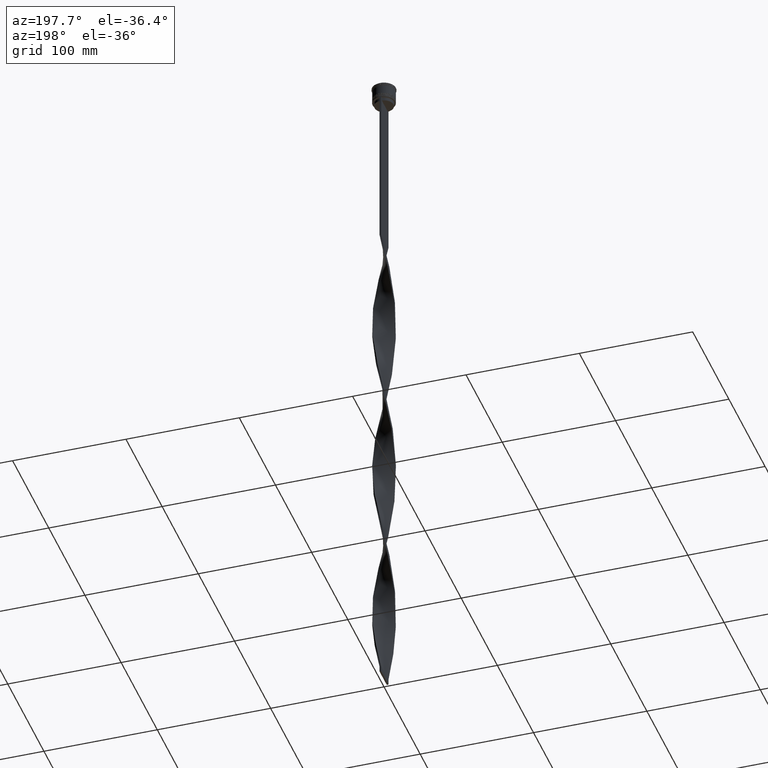
[diagram: clean part render]
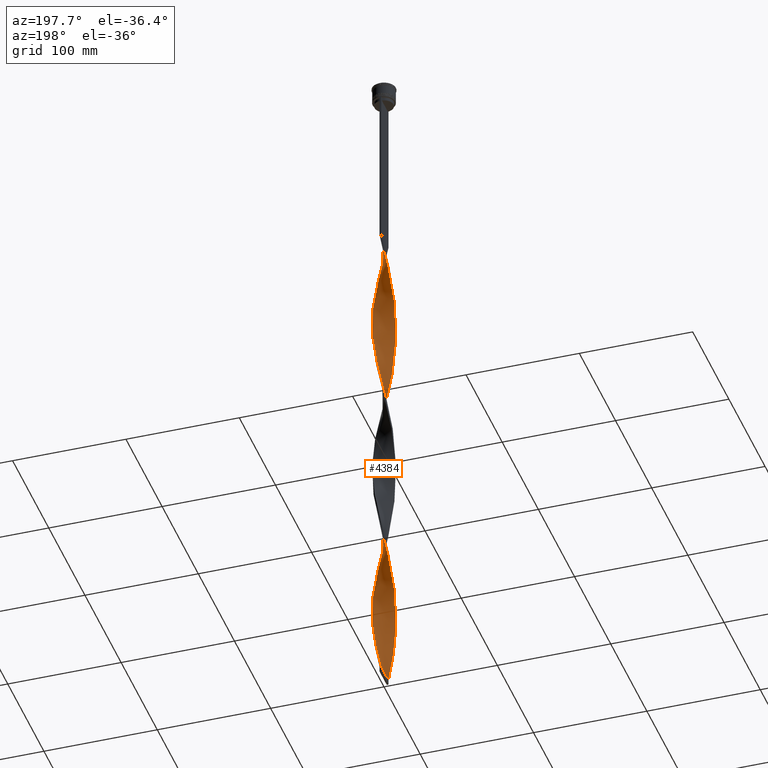
[diagram: same view with one face highlighted and labeled with its STEP entity id]
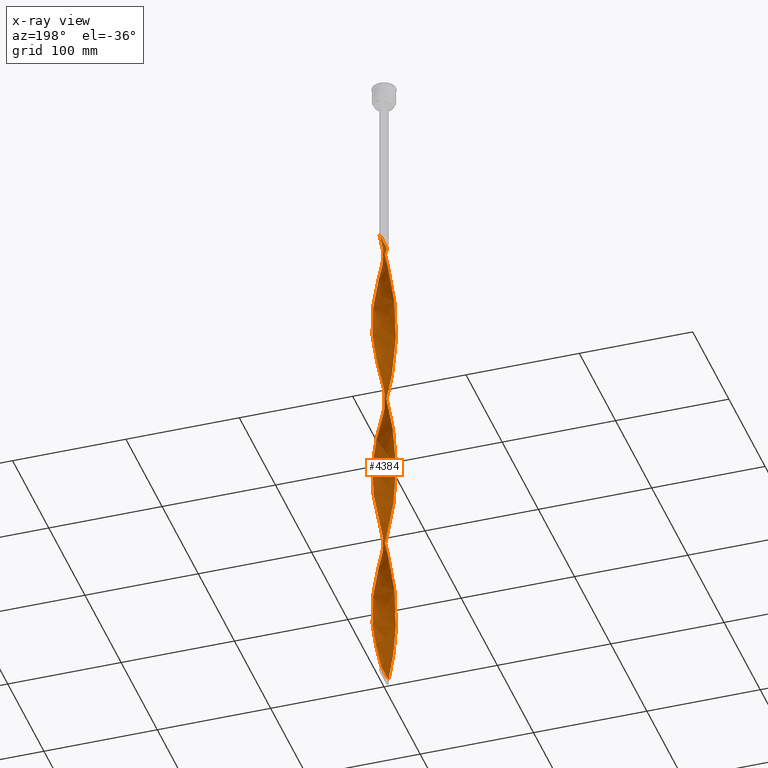
[diagram: x-ray of the same camera — body ghosted, the highlighted face saturated]
A machine part, auxiliary view. The second image highlights one B-rep face of the part: STEP entity #4384.
The next image is the same camera in x-ray: the body ghosted, the highlighted face saturated — about 0% of this face is hidden behind the body in this view.
In plain terms, the highlighted face is a freeform B-spline surface patch.
Its self-contained STEP definition (entity closure, byte-faithful):
#4 = VECTOR ( 'NONE', #2269, 1000.000000000000000 ) ;
#17 = CARTESIAN_POINT ( 'NONE',  ( -8.750108451655693287, -4.942682784217351966, -261.3541666666666856 ) ) ;
#19 = CARTESIAN_POINT ( 'NONE',  ( 9.320399624033083086, -3.758279110105990473, -211.2430555555554861 ) ) ;
#37 = CARTESIAN_POINT ( 'NONE',  ( 7.172695297828685312, 7.038959666430918638, -424.2152777777777146 ) ) ;
#38 = CARTESIAN_POINT ( 'NONE',  ( -9.950842402888580907, -1.405434628152375520, -386.6319444444444571 ) ) ;
#45 = CARTESIAN_POINT ( 'NONE',  ( -0.5616782761701575311, 10.01234325790314195, -164.2638888888888857 ) ) ;
#47 = CARTESIAN_POINT ( 'NONE',  ( 6.192563292782588213, -7.914964995880702681, -486.8541666666665719 ) ) ;
#61 = CARTESIAN_POINT ( 'NONE',  ( -9.465143979063800117, -3.312634820742005548, -396.0277777777777715 ) ) ;
#67 = CARTESIAN_POINT ( 'NONE',  ( 9.975528918694859470, 1.217921924187924443, -392.8958333333332575 ) ) ;
#77 = CARTESIAN_POINT ( 'NONE',  ( 0.7500000000000001110, -10.00000000000000533, -157.9999999999999716 ) ) ;
#83 = CARTESIAN_POINT ( 'NONE',  ( 10.01234325790314905, -0.5616782761701598625, -527.5694444444444571 ) ) ;
#92 = CARTESIAN_POINT ( 'NONE',  ( -2.048845568230877934, -9.816553969573064364, -302.0694444444444002 ) ) ;
#102 = CARTESIAN_POINT ( 'NONE',  ( 9.731216174740294989, -2.509570238428881606, -217.5069444444443718 ) ) ;
#107 = CARTESIAN_POINT ( 'NONE',  ( -6.042515785520203409, 8.030100497682090221, -493.1180555555555429 ) ) ;
#108 = CARTESIAN_POINT ( 'NONE',  ( 8.285254037844390851, 5.649519052838329891, -558.8888888888889142 ) ) ;
#116 = CARTESIAN_POINT ( 'NONE',  ( -10.01234325790314195, -0.5616782761701554216, -239.4305555555555429 ) ) ;
#118 = CARTESIAN_POINT ( 'NONE',  ( 6.682629295305634543, -7.476962331155817765, -489.9861111111111427 ) ) ;
#123 = CARTESIAN_POINT ( 'NONE',  ( 9.465143979063798341, 3.312634820742009101, -245.6944444444444287 ) ) ;
#127 = CARTESIAN_POINT ( 'NONE',  ( 7.914964995880705345, 6.192563292782586437, -562.0208333333331439 ) ) ;
#136 = CARTESIAN_POINT ( 'NONE',  ( -3.933013133174654730, -9.248022421870020437, -292.6736111111110290 ) ) ;
#146 = CARTESIAN_POINT ( 'NONE',  ( 4.350480947161677214, 9.035254037844390851, -283.2777777777777146 ) ) ;
#149 = CARTESIAN_POINT ( 'NONE',  ( -3.312634820742010877, -9.465143979063789459, -596.4722222222222854 ) ) ;
#156 = ORIENTED_EDGE ( 'NONE', *, *, #3816, .F. ) ;
#161 = CARTESIAN_POINT ( 'NONE',  ( 9.731216174740289659, 2.509570238428876721, -399.1597222222221149 ) ) ;
#177 = CARTESIAN_POINT ( 'NONE',  ( 8.750108451655698616, -4.942682784217360847, -204.9791666666666288 ) ) ;
#189 = CARTESIAN_POINT ( 'NONE',  ( -0.5616782761701575311, 10.01234325790314195, -464.9305555555555429 ) ) ;
#200 = CARTESIAN_POINT ( 'NONE',  ( -0.5616782761701686333, -10.01234325790314905, -452.4027777777777715 ) ) ;
#209 = CARTESIAN_POINT ( 'NONE',  ( -0.7500000000000013323, -9.999999999999998224, -609.0000000000000000 ) ) ;
#217 = CARTESIAN_POINT ( 'NONE',  ( -3.312634820742005992, 9.465143979063800117, -320.8611111111110858 ) ) ;
#226 = CARTESIAN_POINT ( 'NONE',  ( -7.038959666430921303, 7.172695297828681760, -198.7152777777777430 ) ) ;
#228 = CARTESIAN_POINT ( 'NONE',  ( 1.405434628152387955, 9.950842402888570248, -455.5347222222221149 ) ) ;
#240 = CARTESIAN_POINT ( 'NONE',  ( -6.682629295305632766, 7.476962331155817765, -339.6527777777777715 ) ) ;
#246 = CARTESIAN_POINT ( 'NONE',  ( -0.7499999999999988898, 10.00000000000000533, -609.0000000000000000 ) ) ;
#254 = CARTESIAN_POINT ( 'NONE',  ( 2.048845568230883263, 9.816553969573060812, -452.4027777777777715 ) ) ;
#260 = CARTESIAN_POINT ( 'NONE',  ( -7.038959666430931073, -7.172695297828680872, -417.9513888888888573 ) ) ;
#268 = CARTESIAN_POINT ( 'NONE',  ( -5.492599284868777687, 8.390104474668893531, -189.3194444444444287 ) ) ;
#269 = CARTESIAN_POINT ( 'NONE',  ( 5.106474812894082227, 8.655543079808069251, -436.7430555555554861 ) ) ;
#276 = CARTESIAN_POINT ( 'NONE',  ( 2.048845568230874381, -9.816553969573071470, -464.9305555555555429 ) ) ;
#285 = CARTESIAN_POINT ( 'NONE',  ( 3.133924674267436039, 9.525807899386689925, -289.5416666666666288 ) ) ;
#288 = CARTESIAN_POINT ( 'NONE',  ( -0.7499999999999988898, 10.00000000000000533, -609.0000000000000000 ) ) ;
#300 = CARTESIAN_POINT ( 'NONE',  ( 3.133924674267436039, 9.525807899386689925, -590.2083333333333712 ) ) ;
#312 = CARTESIAN_POINT ( 'NONE',  ( 8.750108451655693287, 4.942682784217351077, -411.6875000000000000 ) ) ;
#313 = CARTESIAN_POINT ( 'NONE',  ( -3.933013133174650289, 9.248022421870031096, -323.9930555555555429 ) ) ;
#319 = CARTESIAN_POINT ( 'NONE',  ( -7.476962331155810659, 6.682629295305631878, -201.8472222222222001 ) ) ;
#335 = CARTESIAN_POINT ( 'NONE',  ( 4.350480947161667444, -9.035254037844387298, -333.3888888888888573 ) ) ;
#336 = CARTESIAN_POINT ( 'NONE',  ( 6.192563292782588213, -7.914964995880703569, -186.1875000000000000 ) ) ;
#355 = CARTESIAN_POINT ( 'NONE',  ( 8.030100497682091998, 6.042515785520198079, -417.9513888888888573 ) ) ;
#356 = CARTESIAN_POINT ( 'NONE',  ( 9.975528918694866576, -1.217921924187935545, -223.7708333333332575 ) ) ;
#378 = CARTESIAN_POINT ( 'NONE',  ( 9.853372546717572789, 1.863746081308401026, -396.0277777777777715 ) ) ;
#381 = CARTESIAN_POINT ( 'NONE',  ( 9.950842402888577354, 1.405434628152381071, -236.2986111111110574 ) ) ;
#400 = CARTESIAN_POINT ( 'NONE',  ( 9.816553969573060812, -2.048845568230882375, -377.2361111111110858 ) ) ;
#401 = CARTESIAN_POINT ( 'NONE',  ( -3.758279110105998022, -9.320399624033079533, -436.7430555555554861 ) ) ;
#407 = CARTESIAN_POINT ( 'NONE',  ( 9.682265536257556704, -2.692256508309369245, -374.1041666666665719 ) ) ;
#416 = CARTESIAN_POINT ( 'NONE',  ( 9.975528918694864799, -1.217921924187935545, -223.7708333333332860 ) ) ;
#420 = CARTESIAN_POINT ( 'NONE',  ( 9.731216174740294989, -2.509570238428881606, -518.1736111111110858 ) ) ;
#429 = CARTESIAN_POINT ( 'NONE',  ( 7.476962331155807995, -6.682629295305633654, -352.1805555555554861 ) ) ;
#441 = CARTESIAN_POINT ( 'NONE',  ( 7.476962331155817765, 6.682629295305632766, -264.4861111111110858 ) ) ;
#446 = CARTESIAN_POINT ( 'NONE',  ( -8.951782750839049285, 4.519743973034362483, -515.0416666666666288 ) ) ;
#447 = CARTESIAN_POINT ( 'NONE',  ( 2.048845568230874381, -9.816553969573071470, -464.9305555555555429 ) ) ;
#457 = CARTESIAN_POINT ( 'NONE',  ( 8.390104474668895307, 5.492599284868770582, -414.8194444444444002 ) ) ;
#468 = CARTESIAN_POINT ( 'NONE',  ( 9.525807899386689925, -3.133924674267435151, -214.3749999999999716 ) ) ;
#472 = CARTESIAN_POINT ( 'NONE',  ( -2.509570238428877609, 9.731216174740289659, -474.3263888888889142 ) ) ;
#473 = CARTESIAN_POINT ( 'NONE',  ( -9.975528918694864799, 1.217921924187938876, -374.1041666666665719 ) ) ;
#480 = CARTESIAN_POINT ( 'NONE',  ( -9.525807899386684596, -3.133924674267429378, -251.9583333333332860 ) ) ;
#490 = CARTESIAN_POINT ( 'NONE',  ( 5.492599284868785681, 8.390104474668895307, -277.0138888888889142 ) ) ;
#493 = CARTESIAN_POINT ( 'NONE',  ( -3.933013133174654286, -9.248022421870020437, -593.3402777777777146 ) ) ;
#495 = CARTESIAN_POINT ( 'NONE',  ( -9.853372546717576341, 1.863746081308415237, -370.9722222222222285 ) ) ;
#506 = CARTESIAN_POINT ( 'NONE',  ( -9.999999999999998224, 0.7500000000000007772, -233.1666666666666288 ) ) ;
#534 = CARTESIAN_POINT ( 'NONE',  ( -8.951782750839049285, 4.519743973034362483, -515.0416666666666288 ) ) ;
#545 = CARTESIAN_POINT ( 'NONE',  ( -9.975528918694863023, 1.217921924187938654, -374.1041666666666288 ) ) ;
#555 = CARTESIAN_POINT ( 'NONE',  ( -3.758279110105984699, 9.320399624033077757, -179.9236111111110574 ) ) ;
#557 = CARTESIAN_POINT ( 'NONE',  ( -2.048845568230877934, -9.816553969573064364, -602.7361111111110858 ) ) ;
#566 = CARTESIAN_POINT ( 'NONE',  ( -8.951782750839058167, -4.519743973034358930, -402.2916666666666856 ) ) ;
#570 = CARTESIAN_POINT ( 'NONE',  ( 1.217921924187938432, 9.975528918694866576, -599.6041666666666288 ) ) ;
#576 = CARTESIAN_POINT ( 'NONE',  ( 2.048845568230874381, -9.816553969573071470, -164.2638888888888857 ) ) ;
#586 = CARTESIAN_POINT ( 'NONE',  ( -9.465143979063800117, -3.312634820742005548, -396.0277777777777715 ) ) ;
#599 = CARTESIAN_POINT ( 'NONE',  ( -9.731216174740289659, -2.509570238428876277, -248.8263888888888289 ) ) ;
#600 = CARTESIAN_POINT ( 'NONE',  ( 7.601397897755385991, 6.540737725975562356, -421.0833333333333144 ) ) ;
#613 = CARTESIAN_POINT ( 'NONE',  ( -8.285254037844394404, -5.649519052838325450, -408.5555555555555429 ) ) ;
#627 = CARTESIAN_POINT ( 'NONE',  ( 0.7500000000000001110, 9.999999999999998224, -458.6666666666666856 ) ) ;
#634 = CARTESIAN_POINT ( 'NONE',  ( -9.853372546717576341, 1.863746081308415237, -370.9722222222222285 ) ) ;
#647 = CARTESIAN_POINT ( 'NONE',  ( 6.042515785520210514, 8.030100497682093774, -273.8819444444444002 ) ) ;
#657 = CARTESIAN_POINT ( 'NONE',  ( 7.476962331155817765, 6.682629295305632766, -565.1527777777778283 ) ) ;
#665 = CARTESIAN_POINT ( 'NONE',  ( 9.682265536257556704, -2.692256508309369245, -374.1041666666666288 ) ) ;
#667 = CARTESIAN_POINT ( 'NONE',  ( 0.5616782761701627491, 10.01234325790314905, -302.0694444444444002 ) ) ;
#670 = CARTESIAN_POINT ( 'NONE',  ( -0.7500000000000014433, -9.999999999999998224, -609.0000000000000000 ) ) ;
#678 = CARTESIAN_POINT ( 'NONE',  ( -1.863746081308405689, 9.853372546717572789, -170.5277777777777430 ) ) ;
#697 = CARTESIAN_POINT ( 'NONE',  ( 3.312634820742016650, 9.465143979063789459, -446.1388888888888573 ) ) ;
#698 = CARTESIAN_POINT ( 'NONE',  ( -6.192563292782586437, 7.914964995880707122, -336.5208333333332575 ) ) ;
#705 = CARTESIAN_POINT ( 'NONE',  ( -8.951782750839049285, 4.519743973034362483, -214.3749999999999716 ) ) ;
#717 = CARTESIAN_POINT ( 'NONE',  ( 8.390104474668895307, 5.492599284868770582, -414.8194444444444002 ) ) ;
#718 = CARTESIAN_POINT ( 'NONE',  ( 4.519743973034364259, -8.951782750839054614, -176.7916666666666572 ) ) ;
#738 = CARTESIAN_POINT ( 'NONE',  ( 7.914964995880690246, -6.192563292782591766, -355.3124999999999432 ) ) ;
#739 = CARTESIAN_POINT ( 'NONE',  ( 9.731216174740294989, -2.509570238428881606, -217.5069444444443718 ) ) ;
#764 = CARTESIAN_POINT ( 'NONE',  ( 3.133924674267426269, -9.525807899386686373, -327.1250000000000000 ) ) ;
#767 = CARTESIAN_POINT ( 'NONE',  ( -1.217921924187939320, -9.975528918694864799, -449.2708333333333712 ) ) ;
#773 = CARTESIAN_POINT ( 'NONE',  ( -9.731216174740289659, -2.509570238428876277, -248.8263888888888289 ) ) ;
#774 = CARTESIAN_POINT ( 'NONE',  ( 0.5616782761701627491, 10.01234325790314905, -602.7361111111110858 ) ) ;
#786 = CARTESIAN_POINT ( 'NONE',  ( -8.390104474668893531, -5.492599284868775023, -565.1527777777778283 ) ) ;
#787 = CARTESIAN_POINT ( 'NONE',  ( 0.7500000000000001110, -10.00000000000000533, -458.6666666666666856 ) ) ;
#795 = VERTEX_POINT ( 'NONE', #1246 ) ;
#796 = CARTESIAN_POINT ( 'NONE',  ( 10.04915759711142798, -0.09456537184762517367, -386.6319444444444571 ) ) ;
#797 =( BOUNDED_CURVE ( )  B_SPLINE_CURVE ( 2, ( #4471, #1292, #911, #3398, #3727, #3440, #1329, #555, #3072, #3113, #268, #1977, #1611, #226, #3088, #935, #2740, #2697, #956, #1310, #2335, #2718, #4124, #4168, #2355, #3768, #999, #3030, #4449, #599, #1271, #2676, #2402, #17, #3926, #1063, #3528, #4254, #2442, #4186, #3902, #3507, #4574, #1755, #2096, #1802, #3834, #3158, #1390, #4235, #2161, #1082, #2810, #2502, #764, #3547, #335, #2483, #3178, #1037, #2066, #3572, #2464, #738, #2765, #2134, #1417, #2787, #1103, #665, #400, #3221, #1352, #1017, #3861, #3883, #378, #3484, #2420, #2835, #1781, #312, #717, #355, #3201, #37, #1715, #3136, #2854, #2116, #4276, #1434, #697, #4554, #1736, #1372, #4207, #3648, #4047, #4298, #3594, #472, #1899, #2874, #3616, #3269, #1218, #107, #4364, #1170, #2943, #2620, #807, #2527, #446, #1195, #3951, #1504, #880, #1877, #2567, #2203, #1455, #861, #3316, #1127, #3291, #2276, #2596, #2546, #786, #1850, #4027, #1482, #2257, #2920, #4342, #832, #2899, #493, #149, #1556, #4321, #3995, #2232 ),
 .UNSPECIFIED., .F., .T. ) 
 B_SPLINE_CURVE_WITH_KNOTS ( ( 3, 2, 2, 2, 2, 2, 2, 2, 2, 2, 2, 2, 2, 2, 2, 2, 2, 2, 2, 2, 2, 2, 2, 2, 2, 2, 2, 2, 2, 2, 2, 2, 2, 2, 2, 2, 2, 2, 2, 2, 2, 2, 2, 2, 2, 2, 2, 2, 2, 2, 2, 2, 2, 2, 2, 2, 2, 2, 2, 2, 2, 2, 2, 2, 2, 2, 2, 2, 2, 2, 2, 2, 3 ),
 ( 0.000000000000000000, 0.01041666666666666609, 0.02083333333333333218, 0.03125000000000000000, 0.04166666666666666435, 0.05208333333333333565, 0.06250000000000000000, 0.07291666666666667129, 0.08333333333333332871, 0.09375000000000000000, 0.1041666666666666713, 0.1145833333333333287, 0.1250000000000000000, 0.1354166666666666574, 0.1458333333333333426, 0.1562500000000000000, 0.1666666666666666574, 0.1770833333333333426, 0.1875000000000000000, 0.1979166666666666574, 0.2083333333333333426, 0.2187500000000000000, 0.2291666666666666574, 0.2395833333333333426, 0.2500000000000000000, 0.2604166666666666852, 0.2708333333333333148, 0.2812500000000000000, 0.2916666666666666852, 0.3020833333333333148, 0.3125000000000000000, 0.3229166666666666852, 0.3333333333333333148, 0.3437500000000000000, 0.3541666666666666852, 0.3645833333333333148, 0.3750000000000000000, 0.3854166666666666852, 0.3958333333333333148, 0.4062500000000000000, 0.4166666666666666852, 0.4270833333333333148, 0.4375000000000000000, 0.4479166666666666852, 0.4583333333333333148, 0.4687500000000000000, 0.4791666666666666852, 0.4895833333333333148, 0.5000000000000000000, 0.5104166666666666297, 0.5208333333333333703, 0.5312500000000000000, 0.5416666666666666297, 0.5520833333333333703, 0.5625000000000000000, 0.5729166666666666297, 0.5833333333333333703, 0.5937500000000000000, 0.6041666666666666297, 0.6145833333333333703, 0.6250000000000000000, 0.6354166666666666297, 0.6458333333333333703, 0.6562500000000000000, 0.6666666666666666297, 0.6770833333333333703, 0.6875000000000000000, 0.6979166666666666297, 0.7083333333333333703, 0.7187500000000000000, 0.7291666666666666297, 0.7395833333333333703, 0.7500000000000000000 ),
 .UNSPECIFIED. ) 
 CURVE ( )  GEOMETRIC_REPRESENTATION_ITEM ( )  RATIONAL_B_SPLINE_CURVE ( ( 1.000000000000000000, 0.9978589232386034791, 1.000000000000000000, 0.9978589232386034791, 1.000000000000000000, 0.9978589232386034791, 1.000000000000000000, 0.9978589232386034791, 1.000000000000000000, 0.9978589232386034791, 1.000000000000000000, 0.9978589232386034791, 1.000000000000000000, 0.9978589232386034791, 1.000000000000000000, 0.9978589232386034791, 1.000000000000000000, 0.9978589232386034791, 1.000000000000000000, 0.9978589232386034791, 1.000000000000000000, 0.9978589232386034791, 1.000000000000000000, 0.9978589232386034791, 1.000000000000000000, 0.9978589232386034791, 1.000000000000000000, 0.9978589232386034791, 1.000000000000000000, 0.9978589232386034791, 1.000000000000000000, 0.9978589232386034791, 1.000000000000000000, 0.9978589232386034791, 1.000000000000000000, 0.9978589232386034791, 1.000000000000000000, 0.9978589232386034791, 1.000000000000000000, 0.9978589232386034791, 1.000000000000000000, 0.9978589232386034791, 1.000000000000000000, 0.9978589232386034791, 1.000000000000000000, 0.9978589232386034791, 1.000000000000000000, 0.9978589232386034791, 1.000000000000000000, 0.9978589232386034791, 1.000000000000000000, 0.9978589232386034791, 1.000000000000000000, 0.9978589232386034791, 1.000000000000000000, 0.9978589232386034791, 1.000000000000000000, 0.9978589232386034791, 1.000000000000000000, 0.9978589232386034791, 1.000000000000000000, 0.9978589232386034791, 1.000000000000000000, 0.9978589232386034791, 1.000000000000000000, 0.9978589232386034791, 1.000000000000000000, 0.9978589232386034791, 1.000000000000000000, 0.9978589232386034791, 1.000000000000000000, 0.9978589232386034791, 1.000000000000000000, 0.9978589232386034791, 1.000000000000000000, 0.9978589232386034791, 1.000000000000000000, 0.9978589232386034791, 1.000000000000000000, 0.9978589232386034791, 1.000000000000000000, 0.9978589232386034791, 1.000000000000000000, 0.9978589232386034791, 1.000000000000000000, 0.9978589232386034791, 1.000000000000000000, 0.9978589232386034791, 1.000000000000000000, 0.9978589232386034791, 1.000000000000000000, 0.9978589232386034791, 1.000000000000000000, 0.9978589232386034791, 1.000000000000000000, 0.9978589232386034791, 1.000000000000000000, 0.9978589232386034791, 1.000000000000000000, 0.9978589232386034791, 1.000000000000000000, 0.9978589232386034791, 1.000000000000000000, 0.9978589232386034791, 1.000000000000000000, 0.9978589232386034791, 1.000000000000000000, 0.9978589232386034791, 1.000000000000000000, 0.9978589232386034791, 1.000000000000000000, 0.9978589232386034791, 1.000000000000000000, 0.9978589232386034791, 1.000000000000000000, 0.9978589232386034791, 1.000000000000000000, 0.9978589232386034791, 1.000000000000000000, 0.9978589232386034791, 1.000000000000000000, 0.9978589232386034791, 1.000000000000000000, 0.9978589232386034791, 1.000000000000000000, 0.9978589232386034791, 1.000000000000000000, 0.9978589232386034791, 1.000000000000000000, 0.9978589232386034791, 1.000000000000000000, 0.9978589232386034791, 1.000000000000000000, 0.9978589232386034791, 1.000000000000000000, 0.9978589232386034791, 1.000000000000000000, 0.9978589232386034791, 1.000000000000000000, 0.9978589232386034791, 1.000000000000000000, 0.9978589232386034791, 1.000000000000000000, 0.9978589232386034791, 1.000000000000000000 ) ) 
 REPRESENTATION_ITEM ( '' )  );
#805 = CARTESIAN_POINT ( 'NONE',  ( 9.682265536257567362, 2.692256508309363472, -242.5624999999999432 ) ) ;
#807 = CARTESIAN_POINT ( 'NONE',  ( -8.285254037844383745, 5.649519052838329891, -508.7777777777777715 ) ) ;
#808 = CARTESIAN_POINT ( 'NONE',  ( 5.649519052838331667, -8.285254037844390851, -483.7222222222222285 ) ) ;
#816 = CARTESIAN_POINT ( 'NONE',  ( 10.01234325790314195, 0.5616782761701544224, -389.7638888888889142 ) ) ;
#827 = CARTESIAN_POINT ( 'NONE',  ( 10.01234325790314905, -0.5616782761701598625, -226.9027777777777715 ) ) ;
#832 = CARTESIAN_POINT ( 'NONE',  ( -5.106474812894076010, -8.655543079808072804, -587.0763888888888005 ) ) ;
#833 = CARTESIAN_POINT ( 'NONE',  ( 9.853372546717578118, -1.863746081308409464, -521.3055555555554292 ) ) ;
#845 = CARTESIAN_POINT ( 'NONE',  ( -9.975528918694857694, -1.217921924187930438, -242.5624999999999147 ) ) ;
#857 = CARTESIAN_POINT ( 'NONE',  ( 1.405434628152382404, -9.950842402888575577, -161.1319444444444002 ) ) ;
#861 = CARTESIAN_POINT ( 'NONE',  ( -9.975528918694857694, -1.217921924187930216, -543.2291666666665151 ) ) ;
#862 = CARTESIAN_POINT ( 'NONE',  ( -8.285254037844394404, -5.649519052838325450, -408.5555555555555429 ) ) ;
#868 = CARTESIAN_POINT ( 'NONE',  ( 8.951782750839045733, -4.519743973034367812, -364.7083333333333144 ) ) ;
#880 = CARTESIAN_POINT ( 'NONE',  ( -9.816553969573064364, 2.048845568230875269, -527.5694444444444571 ) ) ;
#889 = CARTESIAN_POINT ( 'NONE',  ( 0.09456537184761801274, 10.04915759711142798, -461.7986111111110290 ) ) ;
#898 = CARTESIAN_POINT ( 'NONE',  ( 9.320399624033083086, -3.758279110105990473, -211.2430555555555145 ) ) ;
#911 = CARTESIAN_POINT ( 'NONE',  ( -0.5616782761701574200, 10.01234325790314195, -164.2638888888888857 ) ) ;
#917 = CARTESIAN_POINT ( 'NONE',  ( -5.106474812894076898, -8.655543079808074580, -587.0763888888889142 ) ) ;
#918 = ORIENTED_EDGE ( 'NONE', *, *, #2284, .F. ) ;
#924 =( BOUNDED_CURVE ( )  B_SPLINE_CURVE ( 2, ( #77, #857, #1236, #2616, #1166, #2894, #2563, #4043, #3265, #3344, #2273, #2636, #3992, #3691, #3288, #177, #1579, #898, #468, #102, #4066, #416, #827, #3969, #2543, #2228, #3667, #805, #123, #2592, #3312, #1501, #2199, #3612, #441, #1871, #1523, #2939, #490, #1896, #146, #1257, #1300, #1987, #3387, #2709, #1682, #2688, #4481, #4095, #3079, #2665, #217, #4439, #1661, #3041, #4463, #2014, #240, #1007, #986, #4135, #1618, #4522, #1284, #4155, #3715, #965, #634, #545, #3431, #1946, #4116, #2366, #3781, #3738, #586, #4177, #566, #1343, #613, #946, #1601, #260, #4500, #1319, #927, #2728, #2392, #3368, #3802, #2753, #3020, #3409, #200, #2036, #2326, #3451, #276, #3101, #1969, #2345, #3759, #1642, #3063, #47, #118, #4284, #2885, #3253, #1363, #2433, #2776, #3210, #3583, #3941, #3825, #1861, #2863, #1443, #2412, #1725, #4354, #2513, #2087, #2555, #1463, #3498, #2057, #3631, #657, #3281, #1812, #4198, #3126, #3472, #3983, #4542, #300, #1706, #1111, #1028, #774, #3849, #1516 ),
 .UNSPECIFIED., .F., .T. ) 
 B_SPLINE_CURVE_WITH_KNOTS ( ( 3, 2, 2, 2, 2, 2, 2, 2, 2, 2, 2, 2, 2, 2, 2, 2, 2, 2, 2, 2, 2, 2, 2, 2, 2, 2, 2, 2, 2, 2, 2, 2, 2, 2, 2, 2, 2, 2, 2, 2, 2, 2, 2, 2, 2, 2, 2, 2, 2, 2, 2, 2, 2, 2, 2, 2, 2, 2, 2, 2, 2, 2, 2, 2, 2, 2, 2, 2, 2, 2, 2, 2, 3 ),
 ( 0.000000000000000000, 0.01041666666666666609, 0.02083333333333333218, 0.03125000000000000000, 0.04166666666666666435, 0.05208333333333333565, 0.06250000000000000000, 0.07291666666666667129, 0.08333333333333332871, 0.09375000000000000000, 0.1041666666666666713, 0.1145833333333333287, 0.1250000000000000000, 0.1354166666666666574, 0.1458333333333333426, 0.1562500000000000000, 0.1666666666666666574, 0.1770833333333333426, 0.1875000000000000000, 0.1979166666666666574, 0.2083333333333333426, 0.2187500000000000000, 0.2291666666666666574, 0.2395833333333333426, 0.2500000000000000000, 0.2604166666666666852, 0.2708333333333333148, 0.2812500000000000000, 0.2916666666666666852, 0.3020833333333333148, 0.3125000000000000000, 0.3229166666666666852, 0.3333333333333333148, 0.3437500000000000000, 0.3541666666666666852, 0.3645833333333333148, 0.3750000000000000000, 0.3854166666666666852, 0.3958333333333333148, 0.4062500000000000000, 0.4166666666666666852, 0.4270833333333333148, 0.4375000000000000000, 0.4479166666666666852, 0.4583333333333333148, 0.4687500000000000000, 0.4791666666666666852, 0.4895833333333333148, 0.5000000000000000000, 0.5104166666666666297, 0.5208333333333333703, 0.5312500000000000000, 0.5416666666666666297, 0.5520833333333333703, 0.5625000000000000000, 0.5729166666666666297, 0.5833333333333333703, 0.5937500000000000000, 0.6041666666666666297, 0.6145833333333333703, 0.6250000000000000000, 0.6354166666666666297, 0.6458333333333333703, 0.6562500000000000000, 0.6666666666666666297, 0.6770833333333333703, 0.6875000000000000000, 0.6979166666666666297, 0.7083333333333333703, 0.7187500000000000000, 0.7291666666666666297, 0.7395833333333333703, 0.7500000000000000000 ),
 .UNSPECIFIED. ) 
 CURVE ( )  GEOMETRIC_REPRESENTATION_ITEM ( )  RATIONAL_B_SPLINE_CURVE ( ( 1.000000000000000000, 0.9978589232386034791, 1.000000000000000000, 0.9978589232386034791, 1.000000000000000000, 0.9978589232386034791, 1.000000000000000000, 0.9978589232386034791, 1.000000000000000000, 0.9978589232386034791, 1.000000000000000000, 0.9978589232386034791, 1.000000000000000000, 0.9978589232386034791, 1.000000000000000000, 0.9978589232386034791, 1.000000000000000000, 0.9978589232386034791, 1.000000000000000000, 0.9978589232386034791, 1.000000000000000000, 0.9978589232386034791, 1.000000000000000000, 0.9978589232386034791, 1.000000000000000000, 0.9978589232386034791, 1.000000000000000000, 0.9978589232386034791, 1.000000000000000000, 0.9978589232386034791, 1.000000000000000000, 0.9978589232386034791, 1.000000000000000000, 0.9978589232386034791, 1.000000000000000000, 0.9978589232386034791, 1.000000000000000000, 0.9978589232386034791, 1.000000000000000000, 0.9978589232386034791, 1.000000000000000000, 0.9978589232386034791, 1.000000000000000000, 0.9978589232386034791, 1.000000000000000000, 0.9978589232386034791, 1.000000000000000000, 0.9978589232386034791, 1.000000000000000000, 0.9978589232386034791, 1.000000000000000000, 0.9978589232386034791, 1.000000000000000000, 0.9978589232386034791, 1.000000000000000000, 0.9978589232386034791, 1.000000000000000000, 0.9978589232386034791, 1.000000000000000000, 0.9978589232386034791, 1.000000000000000000, 0.9978589232386034791, 1.000000000000000000, 0.9978589232386034791, 1.000000000000000000, 0.9978589232386034791, 1.000000000000000000, 0.9978589232386034791, 1.000000000000000000, 0.9978589232386034791, 1.000000000000000000, 0.9978589232386034791, 1.000000000000000000, 0.9978589232386034791, 1.000000000000000000, 0.9978589232386034791, 1.000000000000000000, 0.9978589232386034791, 1.000000000000000000, 0.9978589232386034791, 1.000000000000000000, 0.9978589232386034791, 1.000000000000000000, 0.9978589232386034791, 1.000000000000000000, 0.9978589232386034791, 1.000000000000000000, 0.9978589232386034791, 1.000000000000000000, 0.9978589232386034791, 1.000000000000000000, 0.9978589232386034791, 1.000000000000000000, 0.9978589232386034791, 1.000000000000000000, 0.9978589232386034791, 1.000000000000000000, 0.9978589232386034791, 1.000000000000000000, 0.9978589232386034791, 1.000000000000000000, 0.9978589232386034791, 1.000000000000000000, 0.9978589232386034791, 1.000000000000000000, 0.9978589232386034791, 1.000000000000000000, 0.9978589232386034791, 1.000000000000000000, 0.9978589232386034791, 1.000000000000000000, 0.9978589232386034791, 1.000000000000000000, 0.9978589232386034791, 1.000000000000000000, 0.9978589232386034791, 1.000000000000000000, 0.9978589232386034791, 1.000000000000000000, 0.9978589232386034791, 1.000000000000000000, 0.9978589232386034791, 1.000000000000000000, 0.9978589232386034791, 1.000000000000000000, 0.9978589232386034791, 1.000000000000000000, 0.9978589232386034791, 1.000000000000000000, 0.9978589232386034791, 1.000000000000000000, 0.9978589232386034791, 1.000000000000000000, 0.9978589232386034791, 1.000000000000000000, 0.9978589232386034791, 1.000000000000000000, 0.9978589232386034791, 1.000000000000000000, 0.9978589232386034791, 1.000000000000000000, 0.9978589232386034791, 1.000000000000000000, 0.9978589232386034791, 1.000000000000000000 ) ) 
 REPRESENTATION_ITEM ( '' )  );
#927 = CARTESIAN_POINT ( 'NONE',  ( -5.492599284868786569, -8.390104474668895307, -427.3472222222222285 ) ) ;
#935 = CARTESIAN_POINT ( 'NONE',  ( -7.914964995880693799, 6.192563292782586437, -204.9791666666666288 ) ) ;
#937 = CARTESIAN_POINT ( 'NONE',  ( -3.758279110105984699, 9.320399624033077757, -480.5902777777776578 ) ) ;
#946 = CARTESIAN_POINT ( 'NONE',  ( -7.914964995880706233, -6.192563292782585549, -411.6875000000000000 ) ) ;
#956 = CARTESIAN_POINT ( 'NONE',  ( -8.951782750839049285, 4.519743973034362483, -214.3749999999999716 ) ) ;
#958 = CARTESIAN_POINT ( 'NONE',  ( -9.248022421870020437, 3.933013133174653841, -518.1736111111110858 ) ) ;
#965 = CARTESIAN_POINT ( 'NONE',  ( -9.731216174740294989, 2.509570238428882494, -367.8402777777777146 ) ) ;
#969 = CARTESIAN_POINT ( 'NONE',  ( 6.540737725975569461, 7.601397897755389543, -571.4166666666666288 ) ) ;
#976 = CARTESIAN_POINT ( 'NONE',  ( -8.390104474668893531, -5.492599284868775911, -565.1527777777778283 ) ) ;
#986 = CARTESIAN_POINT ( 'NONE',  ( -7.601397897755386879, 6.540737725975573014, -345.9166666666666288 ) ) ;
#999 = CARTESIAN_POINT ( 'NONE',  ( -10.01234325790314195, -0.5616782761701553106, -239.4305555555555429 ) ) ;
#1000 = CARTESIAN_POINT ( 'NONE',  ( 8.655543079808083462, 5.106474812894074233, -255.0902777777776862 ) ) ;
#1007 = CARTESIAN_POINT ( 'NONE',  ( -7.172695297828681760, 7.038959666430931073, -342.7847222222222285 ) ) ;
#1017 = CARTESIAN_POINT ( 'NONE',  ( 10.04915759711142798, -0.09456537184762528470, -386.6319444444444571 ) ) ;
#1019 = CARTESIAN_POINT ( 'NONE',  ( 8.951782750839056391, 4.519743973034362483, -251.9583333333332860 ) ) ;
#1025 = FACE_OUTER_BOUND ( 'NONE', #2535, .T. ) ;
#1028 = CARTESIAN_POINT ( 'NONE',  ( 1.217921924187938210, 9.975528918694864799, -599.6041666666666288 ) ) ;
#1037 = CARTESIAN_POINT ( 'NONE',  ( 6.042515785520199856, -8.030100497682091998, -342.7847222222222285 ) ) ;
#1038 = CARTESIAN_POINT ( 'NONE',  ( -8.030100497682093774, 6.042515785520211402, -349.0486111111110858 ) ) ;
#1047 = CARTESIAN_POINT ( 'NONE',  ( -8.655543079808074580, 5.106474812894075122, -211.2430555555554861 ) ) ;
#1063 = CARTESIAN_POINT ( 'NONE',  ( -8.030100497682091998, -6.042515785520199856, -267.6180555555554861 ) ) ;
#1064 = CARTESIAN_POINT ( 'NONE',  ( 7.172695297828685312, -7.038959666430929296, -192.4513888888888289 ) ) ;
#1070 = CARTESIAN_POINT ( 'NONE',  ( -2.509570238428877609, 9.731216174740289659, -173.6597222222221717 ) ) ;
#1072 = EDGE_CURVE ( 'NONE', #795, #1883, #797, .T. ) ;
#1082 = CARTESIAN_POINT ( 'NONE',  ( 1.217921924187929772, -9.975528918694857694, -317.7291666666665719 ) ) ;
#1083 = CARTESIAN_POINT ( 'NONE',  ( 8.285254037844390851, 5.649519052838329891, -258.2222222222221717 ) ) ;
#1103 = CARTESIAN_POINT ( 'NONE',  ( 9.465143979063789459, -3.312634820742016206, -370.9722222222222285 ) ) ;
#1104 = CARTESIAN_POINT ( 'NONE',  ( -8.951782750839058167, -4.519743973034358930, -402.2916666666666856 ) ) ;
#1111 = CARTESIAN_POINT ( 'NONE',  ( 1.863746081308410352, 9.853372546717578118, -596.4722222222222854 ) ) ;
#1127 = CARTESIAN_POINT ( 'NONE',  ( -9.731216174740289659, -2.509570238428876277, -549.4930555555554292 ) ) ;
#1129 = CARTESIAN_POINT ( 'NONE',  ( 8.750108451655698616, -4.942682784217360847, -505.6458333333333712 ) ) ;
#1136 = CARTESIAN_POINT ( 'NONE',  ( -8.750108451655693287, -4.942682784217351966, -261.3541666666666856 ) ) ;
#1148 = CARTESIAN_POINT ( 'NONE',  ( 10.00000000000000533, 0.7499999999999994449, -533.8333333333333712 ) ) ;
#1157 = CARTESIAN_POINT ( 'NONE',  ( 9.816553969573060812, -2.048845568230882375, -377.2361111111110858 ) ) ;
#1166 = CARTESIAN_POINT ( 'NONE',  ( 3.312634820742009989, -9.465143979063798341, -170.5277777777777430 ) ) ;
#1170 = CARTESIAN_POINT ( 'NONE',  ( -7.038959666430921303, 7.172695297828681760, -499.3819444444444002 ) ) ;
#1171 = CARTESIAN_POINT ( 'NONE',  ( -9.816553969573071470, -2.048845568230871717, -389.7638888888889142 ) ) ;
#1178 = CARTESIAN_POINT ( 'NONE',  ( -9.950842402888570248, 1.405434628152383958, -230.0347222222222001 ) ) ;
#1195 = CARTESIAN_POINT ( 'NONE',  ( -9.248022421870020437, 3.933013133174653397, -518.1736111111110858 ) ) ;
#1196 = CARTESIAN_POINT ( 'NONE',  ( -7.476962331155820429, -6.682629295305629213, -414.8194444444444002 ) ) ;
#1206 = CARTESIAN_POINT ( 'NONE',  ( 9.999999999999998224, -0.7500000000000019984, -383.4999999999999432 ) ) ;
#1218 = CARTESIAN_POINT ( 'NONE',  ( -5.492599284868777687, 8.390104474668893531, -489.9861111111111427 ) ) ;
#1227 = CARTESIAN_POINT ( 'NONE',  ( -9.853372546717572789, -1.863746081308404801, -546.3611111111110858 ) ) ;
#1236 = CARTESIAN_POINT ( 'NONE',  ( 2.048845568230874381, -9.816553969573071470, -164.2638888888888857 ) ) ;
#1246 = CARTESIAN_POINT ( 'NONE',  ( 0.7500000000000002220, 9.999999999999998224, -157.9999999999999716 ) ) ;
#1247 = CARTESIAN_POINT ( 'NONE',  ( -6.682629295305633654, -7.476962331155807995, -577.6805555555555429 ) ) ;
#1257 = CARTESIAN_POINT ( 'NONE',  ( 3.758279110105993137, 9.320399624033081309, -286.4097222222221717 ) ) ;
#1271 = CARTESIAN_POINT ( 'NONE',  ( -9.525807899386684596, -3.133924674267429378, -251.9583333333332860 ) ) ;
#1275 = CARTESIAN_POINT ( 'NONE',  ( 3.312634820742016650, 9.465143979063789459, -446.1388888888888573 ) ) ;
#1284 = CARTESIAN_POINT ( 'NONE',  ( -9.035254037844390851, 4.350480947161678102, -358.4444444444444571 ) ) ;
#1287 = CARTESIAN_POINT ( 'NONE',  ( 3.133924674267436039, 9.525807899386689925, -590.2083333333333712 ) ) ;
#1292 = CARTESIAN_POINT ( 'NONE',  ( 0.09456537184761812376, 10.04915759711142798, -161.1319444444444002 ) ) ;
#1293 = CARTESIAN_POINT ( 'NONE',  ( -9.465143979063789459, 3.312634820742010433, -521.3055555555554292 ) ) ;
#1300 = CARTESIAN_POINT ( 'NONE',  ( 3.133924674267436039, 9.525807899386689925, -289.5416666666666288 ) ) ;
#1305 = CARTESIAN_POINT ( 'NONE',  ( 1.863746081308410352, 9.853372546717578118, -596.4722222222222854 ) ) ;
#1310 = CARTESIAN_POINT ( 'NONE',  ( -9.248022421870020437, 3.933013133174653397, -217.5069444444443718 ) ) ;
#1311 = CARTESIAN_POINT ( 'NONE',  ( -8.750108451655693287, -4.942682784217351966, -562.0208333333331439 ) ) ;
#1319 = CARTESIAN_POINT ( 'NONE',  ( -6.042515785520214067, -8.030100497682090221, -424.2152777777777146 ) ) ;
#1329 = CARTESIAN_POINT ( 'NONE',  ( -3.133924674267432042, 9.525807899386684596, -176.7916666666666572 ) ) ;
#1330 = CARTESIAN_POINT ( 'NONE',  ( 3.933013133174654730, -9.248022421870031096, -173.6597222222221717 ) ) ;
#1343 = CARTESIAN_POINT ( 'NONE',  ( -8.655543079808081686, -5.106474812894073345, -405.4236111111110858 ) ) ;
#1352 = CARTESIAN_POINT ( 'NONE',  ( 9.999999999999998224, -0.7500000000000021094, -383.4999999999999432 ) ) ;
#1353 = CARTESIAN_POINT ( 'NONE',  ( 9.035254037844390851, -4.350480947161673662, -208.1111111111110858 ) ) ;
#1363 = CARTESIAN_POINT ( 'NONE',  ( 8.390104474668897083, -5.492599284868783904, -502.5138888888889142 ) ) ;
#1372 = CARTESIAN_POINT ( 'NONE',  ( 1.405434628152388177, 9.950842402888570248, -455.5347222222221149 ) ) ;
#1373 = CARTESIAN_POINT ( 'NONE',  ( -7.601397897755386879, 6.540737725975573014, -345.9166666666666288 ) ) ;
#1390 = CARTESIAN_POINT ( 'NONE',  ( -0.7500000000000014433, -9.999999999999998224, -308.3333333333333712 ) ) ;
#1393 = CARTESIAN_POINT ( 'NONE',  ( -9.035254037844390851, 4.350480947161678102, -358.4444444444444571 ) ) ;
#1417 = CARTESIAN_POINT ( 'NONE',  ( 8.951782750839045733, -4.519743973034367812, -364.7083333333333144 ) ) ;
#1418 = CARTESIAN_POINT ( 'NONE',  ( 9.465143979063798341, 3.312634820742009101, -245.6944444444444287 ) ) ;
#1434 = CARTESIAN_POINT ( 'NONE',  ( 3.933013133174655174, 9.248022421870020437, -443.0069444444444002 ) ) ;
#1435 = CARTESIAN_POINT ( 'NONE',  ( -2.509570238428882938, -9.731216174740294989, -443.0069444444444002 ) ) ;
#1442 = CARTESIAN_POINT ( 'NONE',  ( -4.942682784217354630, 8.750108451655691510, -186.1875000000000000 ) ) ;
#1443 = CARTESIAN_POINT ( 'NONE',  ( 10.04915759711143508, 0.09456537184761543147, -530.7013888888888005 ) ) ;
#1455 = CARTESIAN_POINT ( 'NONE',  ( -10.01234325790314195, -0.5616782761701553106, -540.0972222222221717 ) ) ;
#1456 = CARTESIAN_POINT ( 'NONE',  ( 7.601397897755390431, -6.540737725975569461, -496.2499999999999432 ) ) ;
#1462 = CARTESIAN_POINT ( 'NONE',  ( -9.465143979063789459, 3.312634820742010433, -220.6388888888888857 ) ) ;
#1463 = CARTESIAN_POINT ( 'NONE',  ( 8.951782750839056391, 4.519743973034362483, -552.6249999999998863 ) ) ;
#1482 = CARTESIAN_POINT ( 'NONE',  ( -7.172695297828681760, -7.038959666430921303, -574.5486111111110858 ) ) ;
#1484 = CARTESIAN_POINT ( 'NONE',  ( 6.192563292782588213, -7.914964995880703569, -486.8541666666665719 ) ) ;
#1492 = CARTESIAN_POINT ( 'NONE',  ( -9.816553969573064364, 2.048845568230874825, -226.9027777777777715 ) ) ;
#1501 = CARTESIAN_POINT ( 'NONE',  ( 8.655543079808081686, 5.106474812894074233, -255.0902777777777146 ) ) ;
#1504 = CARTESIAN_POINT ( 'NONE',  ( -9.682265536257558480, 2.692256508309365692, -524.4375000000000000 ) ) ;
#1506 = CARTESIAN_POINT ( 'NONE',  ( 10.04915759711143508, 0.09456537184761544534, -530.7013888888888005 ) ) ;
#1514 = CARTESIAN_POINT ( 'NONE',  ( 6.042515785520200744, -8.030100497682091998, -342.7847222222222285 ) ) ;
#1516 = CARTESIAN_POINT ( 'NONE',  ( -0.7499999999999988898, 10.00000000000000533, -609.0000000000000000 ) ) ;
#1523 = CARTESIAN_POINT ( 'NONE',  ( 6.540737725975569461, 7.601397897755389543, -270.7500000000000000 ) ) ;
#1527 = CARTESIAN_POINT ( 'NONE',  ( 7.476962331155817765, 6.682629295305632766, -565.1527777777778283 ) ) ;
#1536 = CARTESIAN_POINT ( 'NONE',  ( -0.7500000000000013323, -9.999999999999998224, -308.3333333333333712 ) ) ;
#1556 = CARTESIAN_POINT ( 'NONE',  ( -2.692256508309368801, -9.682265536257558480, -599.6041666666666288 ) ) ;
#1567 = CARTESIAN_POINT ( 'NONE',  ( -7.601397897755385102, -6.540737725975563244, -270.7500000000000000 ) ) ;
#1579 = CARTESIAN_POINT ( 'NONE',  ( 9.035254037844390851, -4.350480947161673662, -208.1111111111110858 ) ) ;
#1590 = CARTESIAN_POINT ( 'NONE',  ( -9.525807899386684596, -3.133924674267429378, -552.6249999999998863 ) ) ;
#1601 = CARTESIAN_POINT ( 'NONE',  ( -7.476962331155820429, -6.682629295305629213, -414.8194444444444002 ) ) ;
#1611 = CARTESIAN_POINT ( 'NONE',  ( -6.540737725975564132, 7.601397897755385102, -195.5833333333333144 ) ) ;
#1613 = CARTESIAN_POINT ( 'NONE',  ( -8.655543079808074580, 5.106474812894075122, -511.9097222222220580 ) ) ;
#1618 = CARTESIAN_POINT ( 'NONE',  ( -8.390104474668895307, 5.492599284868785681, -352.1805555555554861 ) ) ;
#1634 = CARTESIAN_POINT ( 'NONE',  ( 3.933013133174654730, 9.248022421870020437, -443.0069444444444002 ) ) ;
#1640 = VERTEX_POINT ( 'NONE', #4388 ) ;
#1642 = CARTESIAN_POINT ( 'NONE',  ( 5.106474812894076010, -8.655543079808081686, -480.5902777777776578 ) ) ;
#1653 = CARTESIAN_POINT ( 'NONE',  ( -10.01234325790314195, -0.5616782761701554216, -540.0972222222221717 ) ) ;
#1659 = ORIENTED_EDGE ( 'NONE', *, *, #1072, .F. ) ;
#1660 = CARTESIAN_POINT ( 'NONE',  ( -0.7500000000000014433, -9.999999999999998224, -609.0000000000000000 ) ) ;
#1661 = CARTESIAN_POINT ( 'NONE',  ( -4.519743973034358930, 8.951782750839058167, -327.1250000000000000 ) ) ;
#1672 = CARTESIAN_POINT ( 'NONE',  ( 2.692256508309369689, 9.682265536257556704, -449.2708333333333712 ) ) ;
#1682 = CARTESIAN_POINT ( 'NONE',  ( 0.5616782761701627491, 10.01234325790314905, -302.0694444444444002 ) ) ;
#1691 = CARTESIAN_POINT ( 'NONE',  ( 6.540737725975569461, 7.601397897755389543, -270.7500000000000000 ) ) ;
#1706 = CARTESIAN_POINT ( 'NONE',  ( 2.509570238428882050, 9.731216174740294989, -593.3402777777777146 ) ) ;
#1715 = CARTESIAN_POINT ( 'NONE',  ( 6.682629295305635431, 7.476962331155807995, -427.3472222222222285 ) ) ;
#1716 = CARTESIAN_POINT ( 'NONE',  ( -5.649519052838329891, 8.285254037844392627, -333.3888888888888573 ) ) ;
#1725 = CARTESIAN_POINT ( 'NONE',  ( 9.950842402888575577, 1.405434628152381071, -536.9652777777778283 ) ) ;
#1736 = CARTESIAN_POINT ( 'NONE',  ( 2.048845568230883263, 9.816553969573060812, -452.4027777777777715 ) ) ;
#1737 = CARTESIAN_POINT ( 'NONE',  ( 1.217921924187938432, 9.975528918694866576, -298.9374999999999432 ) ) ;
#1743 = CARTESIAN_POINT ( 'NONE',  ( 0.09456537184761801274, 10.04915759711142798, -161.1319444444444002 ) ) ;
#1755 = CARTESIAN_POINT ( 'NONE',  ( -3.933013133174654286, -9.248022421870020437, -292.6736111111110858 ) ) ;
#1757 = CARTESIAN_POINT ( 'NONE',  ( -7.172695297828681760, 7.038959666430931073, -342.7847222222222285 ) ) ;
#1781 = CARTESIAN_POINT ( 'NONE',  ( 9.035254037844389075, 4.350480947161663003, -408.5555555555555429 ) ) ;
#1782 = CARTESIAN_POINT ( 'NONE',  ( 7.914964995880705345, 6.192563292782586437, -261.3541666666666856 ) ) ;
#1802 = CARTESIAN_POINT ( 'NONE',  ( -2.692256508309368801, -9.682265536257558480, -298.9374999999999432 ) ) ;
#1803 = CARTESIAN_POINT ( 'NONE',  ( 4.519743973034364259, -8.951782750839054614, -477.4583333333333144 ) ) ;
#1811 = CARTESIAN_POINT ( 'NONE',  ( -9.320399624033077757, -3.758279110105983811, -255.0902777777776862 ) ) ;
#1812 = CARTESIAN_POINT ( 'NONE',  ( 6.540737725975569461, 7.601397897755389543, -571.4166666666666288 ) ) ;
#1824 = CARTESIAN_POINT ( 'NONE',  ( 1.405434628152382404, -9.950842402888577354, -461.7986111111110290 ) ) ;
#1830 = CARTESIAN_POINT ( 'NONE',  ( -8.390104474668893531, -5.492599284868775911, -264.4861111111110858 ) ) ;
#1835 =( BOUNDED_SURFACE ( )  B_SPLINE_SURFACE ( 1, 2, ( 
 ( #3844, #1743, #45, #3870, #678, #1070, #2842, #3909, #3166, #1442, #3822, #2823, #2123, #2078, #319, #4217, #2472, #1047, #705, #3514, #1462, #4400, #1492, #1178, #506, #2211, #116, #845, #3602, #773, #480, #1811, #2985, #1136, #1830, #2536, #1567, #3939, #1887, #2170, #3656, #3682, #2574, #136, #4377, #3303, #92, #4035, #1536, #3227, #2264, #2884, #1908, #4331, #4008, #3252, #3982, #2909, #3961, #1514, #2190, #3327, #429, #2952, #2512, #4351, #868, #3581, #2242, #407, #1157, #2931, #1206, #796, #816, #67, #2554, #161, #3279, #4309, #1859, #3629, #457, #2604, #600, #2628, #2719, #2679, #4144, #269, #3010, #1634, #1275, #1672, #254, #228, #627, #889, #189, #3703, #3057, #2030, #3089, #937, #4126, #4492, #4107, #2008, #3357, #3444, #4474, #3769, #2699, #1613, #534, #958, #1293, #2357, #1936, #3399, #3425, #4055, #1653, #4451, #1227, #2288, #1590, #3073, #4427, #1311, #976, #2384, #1979, #3797, #1247, #2654, #4079, #917, #3378, #2317, #3032, #3728, #557, #1956, #209 ),
 ( #2336, #3749, #576, #4255, #2404, #1330, #718, #3181, #2743, #336, #3903, #1064, #2422, #4170, #2067, #3884, #1353, #19, #2117, #739, #3835, #356, #2789, #3529, #2465, #381, #4555, #4187, #1418, #3508, #1019, #1000, #1083, #1782, #2136, #3863, #1691, #647, #3817, #2836, #2048, #3461, #285, #3486, #3137, #1737, #667, #4509, #3115, #2484, #4533, #2097, #4210, #313, #3159, #3549, #1716, #698, #2766, #1757, #1373, #1038, #2443, #4576, #1393, #2811, #4237, #4324, #495, #473, #4028, #2922, #2568, #38, #1171, #3617, #61, #2944, #1104, #2258, #862, #4366, #1196, #4299, #2855, #2597, #3202, #3674, #2547, #401, #3928, #1435, #3294, #767, #4277, #2503, #787, #1824, #447, #3953, #2163, #3573, #1803, #3222, #808, #1484, #2875, #2204, #1456, #2183, #3973, #1129, #3997, #2529, #3595, #420, #833, #3242, #83, #1506, #1148, #2900, #1878, #1852, #4343, #2234, #3270, #3649, #108, #127, #1527, #4393, #969, #4138, #3067, #4486, #3002, #3371, #1287, #4048, #1305, #570, #4466, #3393, #2307 ) ),
 .UNSPECIFIED., .F., .F., .F. ) 
 B_SPLINE_SURFACE_WITH_KNOTS ( ( 2, 2 ),
 ( 3, 2, 2, 2, 2, 2, 2, 2, 2, 2, 2, 2, 2, 2, 2, 2, 2, 2, 2, 2, 2, 2, 2, 2, 2, 2, 2, 2, 2, 2, 2, 2, 2, 2, 2, 2, 2, 2, 2, 2, 2, 2, 2, 2, 2, 2, 2, 2, 2, 2, 2, 2, 2, 2, 2, 2, 2, 2, 2, 2, 2, 2, 2, 2, 2, 2, 2, 2, 2, 2, 2, 2, 3 ),
 ( 0.000000000000000000, 1.000000000000000000 ),
 ( 0.000000000000000000, 0.01041666666666666609, 0.02083333333333333218, 0.03125000000000000000, 0.04166666666666666435, 0.05208333333333333565, 0.06250000000000000000, 0.07291666666666667129, 0.08333333333333332871, 0.09375000000000000000, 0.1041666666666666713, 0.1145833333333333287, 0.1250000000000000000, 0.1354166666666666574, 0.1458333333333333426, 0.1562500000000000000, 0.1666666666666666574, 0.1770833333333333426, 0.1875000000000000000, 0.1979166666666666574, 0.2083333333333333426, 0.2187500000000000000, 0.2291666666666666574, 0.2395833333333333426, 0.2500000000000000000, 0.2604166666666666852, 0.2708333333333333148, 0.2812500000000000000, 0.2916666666666666852, 0.3020833333333333148, 0.3125000000000000000, 0.3229166666666666852, 0.3333333333333333148, 0.3437500000000000000, 0.3541666666666666852, 0.3645833333333333148, 0.3750000000000000000, 0.3854166666666666852, 0.3958333333333333148, 0.4062500000000000000, 0.4166666666666666852, 0.4270833333333333148, 0.4375000000000000000, 0.4479166666666666852, 0.4583333333333333148, 0.4687500000000000000, 0.4791666666666666852, 0.4895833333333333148, 0.5000000000000000000, 0.5104166666666666297, 0.5208333333333333703, 0.5312500000000000000, 0.5416666666666666297, 0.5520833333333333703, 0.5625000000000000000, 0.5729166666666666297, 0.5833333333333333703, 0.5937500000000000000, 0.6041666666666666297, 0.6145833333333333703, 0.6250000000000000000, 0.6354166666666666297, 0.6458333333333333703, 0.6562500000000000000, 0.6666666666666666297, 0.6770833333333333703, 0.6875000000000000000, 0.6979166666666666297, 0.7083333333333333703, 0.7187500000000000000, 0.7291666666666666297, 0.7395833333333333703, 0.7500000000000000000 ),
 .UNSPECIFIED. ) 
 GEOMETRIC_REPRESENTATION_ITEM ( )  RATIONAL_B_SPLINE_SURFACE ( (
 ( 1.000000000000000000, 0.9978589232386034791, 1.000000000000000000, 0.9978589232386034791, 1.000000000000000000, 0.9978589232386034791, 1.000000000000000000, 0.9978589232386034791, 1.000000000000000000, 0.9978589232386034791, 1.000000000000000000, 0.9978589232386034791, 1.000000000000000000, 0.9978589232386034791, 1.000000000000000000, 0.9978589232386034791, 1.000000000000000000, 0.9978589232386034791, 1.000000000000000000, 0.9978589232386034791, 1.000000000000000000, 0.9978589232386034791, 1.000000000000000000, 0.9978589232386034791, 1.000000000000000000, 0.9978589232386034791, 1.000000000000000000, 0.9978589232386034791, 1.000000000000000000, 0.9978589232386034791, 1.000000000000000000, 0.9978589232386034791, 1.000000000000000000, 0.9978589232386034791, 1.000000000000000000, 0.9978589232386034791, 1.000000000000000000, 0.9978589232386034791, 1.000000000000000000, 0.9978589232386034791, 1.000000000000000000, 0.9978589232386034791, 1.000000000000000000, 0.9978589232386034791, 1.000000000000000000, 0.9978589232386034791, 1.000000000000000000, 0.9978589232386034791, 1.000000000000000000, 0.9978589232386034791, 1.000000000000000000, 0.9978589232386034791, 1.000000000000000000, 0.9978589232386034791, 1.000000000000000000, 0.9978589232386034791, 1.000000000000000000, 0.9978589232386034791, 1.000000000000000000, 0.9978589232386034791, 1.000000000000000000, 0.9978589232386034791, 1.000000000000000000, 0.9978589232386034791, 1.000000000000000000, 0.9978589232386034791, 1.000000000000000000, 0.9978589232386034791, 1.000000000000000000, 0.9978589232386034791, 1.000000000000000000, 0.9978589232386034791, 1.000000000000000000, 0.9978589232386034791, 1.000000000000000000, 0.9978589232386034791, 1.000000000000000000, 0.9978589232386034791, 1.000000000000000000, 0.9978589232386034791, 1.000000000000000000, 0.9978589232386034791, 1.000000000000000000, 0.9978589232386034791, 1.000000000000000000, 0.9978589232386034791, 1.000000000000000000, 0.9978589232386034791, 1.000000000000000000, 0.9978589232386034791, 1.000000000000000000, 0.9978589232386034791, 1.000000000000000000, 0.9978589232386034791, 1.000000000000000000, 0.9978589232386034791, 1.000000000000000000, 0.9978589232386034791, 1.000000000000000000, 0.9978589232386034791, 1.000000000000000000, 0.9978589232386034791, 1.000000000000000000, 0.9978589232386034791, 1.000000000000000000, 0.9978589232386034791, 1.000000000000000000, 0.9978589232386034791, 1.000000000000000000, 0.9978589232386034791, 1.000000000000000000, 0.9978589232386034791, 1.000000000000000000, 0.9978589232386034791, 1.000000000000000000, 0.9978589232386034791, 1.000000000000000000, 0.9978589232386034791, 1.000000000000000000, 0.9978589232386034791, 1.000000000000000000, 0.9978589232386034791, 1.000000000000000000, 0.9978589232386034791, 1.000000000000000000, 0.9978589232386034791, 1.000000000000000000, 0.9978589232386034791, 1.000000000000000000, 0.9978589232386034791, 1.000000000000000000, 0.9978589232386034791, 1.000000000000000000, 0.9978589232386034791, 1.000000000000000000, 0.9978589232386034791, 1.000000000000000000, 0.9978589232386034791, 1.000000000000000000, 0.9978589232386034791, 1.000000000000000000, 0.9978589232386034791, 1.000000000000000000, 0.9978589232386034791, 1.000000000000000000),
 ( 1.000000000000000000, 0.9978589232386034791, 1.000000000000000000, 0.9978589232386034791, 1.000000000000000000, 0.9978589232386034791, 1.000000000000000000, 0.9978589232386034791, 1.000000000000000000, 0.9978589232386034791, 1.000000000000000000, 0.9978589232386034791, 1.000000000000000000, 0.9978589232386034791, 1.000000000000000000, 0.9978589232386034791, 1.000000000000000000, 0.9978589232386034791, 1.000000000000000000, 0.9978589232386034791, 1.000000000000000000, 0.9978589232386034791, 1.000000000000000000, 0.9978589232386034791, 1.000000000000000000, 0.9978589232386034791, 1.000000000000000000, 0.9978589232386034791, 1.000000000000000000, 0.9978589232386034791, 1.000000000000000000, 0.9978589232386034791, 1.000000000000000000, 0.9978589232386034791, 1.000000000000000000, 0.9978589232386034791, 1.000000000000000000, 0.9978589232386034791, 1.000000000000000000, 0.9978589232386034791, 1.000000000000000000, 0.9978589232386034791, 1.000000000000000000, 0.9978589232386034791, 1.000000000000000000, 0.9978589232386034791, 1.000000000000000000, 0.9978589232386034791, 1.000000000000000000, 0.9978589232386034791, 1.000000000000000000, 0.9978589232386034791, 1.000000000000000000, 0.9978589232386034791, 1.000000000000000000, 0.9978589232386034791, 1.000000000000000000, 0.9978589232386034791, 1.000000000000000000, 0.9978589232386034791, 1.000000000000000000, 0.9978589232386034791, 1.000000000000000000, 0.9978589232386034791, 1.000000000000000000, 0.9978589232386034791, 1.000000000000000000, 0.9978589232386034791, 1.000000000000000000, 0.9978589232386034791, 1.000000000000000000, 0.9978589232386034791, 1.000000000000000000, 0.9978589232386034791, 1.000000000000000000, 0.9978589232386034791, 1.000000000000000000, 0.9978589232386034791, 1.000000000000000000, 0.9978589232386034791, 1.000000000000000000, 0.9978589232386034791, 1.000000000000000000, 0.9978589232386034791, 1.000000000000000000, 0.9978589232386034791, 1.000000000000000000, 0.9978589232386034791, 1.000000000000000000, 0.9978589232386034791, 1.000000000000000000, 0.9978589232386034791, 1.000000000000000000, 0.9978589232386034791, 1.000000000000000000, 0.9978589232386034791, 1.000000000000000000, 0.9978589232386034791, 1.000000000000000000, 0.9978589232386034791, 1.000000000000000000, 0.9978589232386034791, 1.000000000000000000, 0.9978589232386034791, 1.000000000000000000, 0.9978589232386034791, 1.000000000000000000, 0.9978589232386034791, 1.000000000000000000, 0.9978589232386034791, 1.000000000000000000, 0.9978589232386034791, 1.000000000000000000, 0.9978589232386034791, 1.000000000000000000, 0.9978589232386034791, 1.000000000000000000, 0.9978589232386034791, 1.000000000000000000, 0.9978589232386034791, 1.000000000000000000, 0.9978589232386034791, 1.000000000000000000, 0.9978589232386034791, 1.000000000000000000, 0.9978589232386034791, 1.000000000000000000, 0.9978589232386034791, 1.000000000000000000, 0.9978589232386034791, 1.000000000000000000, 0.9978589232386034791, 1.000000000000000000, 0.9978589232386034791, 1.000000000000000000, 0.9978589232386034791, 1.000000000000000000, 0.9978589232386034791, 1.000000000000000000, 0.9978589232386034791, 1.000000000000000000, 0.9978589232386034791, 1.000000000000000000, 0.9978589232386034791, 1.000000000000000000) ) ) 
 REPRESENTATION_ITEM ( '' )  SURFACE ( )  );
#1850 = CARTESIAN_POINT ( 'NONE',  ( -8.030100497682091998, -6.042515785520199856, -568.2847222222221717 ) ) ;
#1852 = CARTESIAN_POINT ( 'NONE',  ( 9.682265536257567362, 2.692256508309363472, -543.2291666666665151 ) ) ;
#1859 = CARTESIAN_POINT ( 'NONE',  ( 9.035254037844389075, 4.350480947161663003, -408.5555555555555429 ) ) ;
#1861 = CARTESIAN_POINT ( 'NONE',  ( 9.975528918694864799, -1.217921924187935545, -524.4375000000000000 ) ) ;
#1871 = CARTESIAN_POINT ( 'NONE',  ( 7.038959666430931073, 7.172695297828681760, -267.6180555555554861 ) ) ;
#1877 = CARTESIAN_POINT ( 'NONE',  ( -9.950842402888570248, 1.405434628152384180, -530.7013888888888005 ) ) ;
#1878 = CARTESIAN_POINT ( 'NONE',  ( 9.816553969573071470, 2.048845568230872605, -540.0972222222221717 ) ) ;
#1883 = VERTEX_POINT ( 'NONE', #1660 ) ;
#1887 = CARTESIAN_POINT ( 'NONE',  ( -6.682629295305633654, -7.476962331155807995, -277.0138888888889142 ) ) ;
#1896 = CARTESIAN_POINT ( 'NONE',  ( 4.942682784217361736, 8.750108451655696840, -280.1458333333333144 ) ) ;
#1899 = CARTESIAN_POINT ( 'NONE',  ( -3.133924674267432042, 9.525807899386684596, -477.4583333333333144 ) ) ;
#1908 = CARTESIAN_POINT ( 'NONE',  ( 1.863746081308401692, -9.853372546717572789, -320.8611111111110858 ) ) ;
#1936 = CARTESIAN_POINT ( 'NONE',  ( -9.816553969573064364, 2.048845568230874825, -527.5694444444444571 ) ) ;
#1946 = CARTESIAN_POINT ( 'NONE',  ( -10.04915759711143508, -0.09456537184761194814, -380.3680555555554861 ) ) ;
#1956 = CARTESIAN_POINT ( 'NONE',  ( -1.405434628152386844, -9.950842402888570248, -605.8680555555556566 ) ) ;
#1969 = CARTESIAN_POINT ( 'NONE',  ( 3.312634820742009989, -9.465143979063798341, -471.1944444444444002 ) ) ;
#1977 = CARTESIAN_POINT ( 'NONE',  ( -6.042515785520203409, 8.030100497682090221, -192.4513888888888289 ) ) ;
#1979 = CARTESIAN_POINT ( 'NONE',  ( -7.601397897755385102, -6.540737725975563244, -571.4166666666666288 ) ) ;
#1987 = CARTESIAN_POINT ( 'NONE',  ( 2.509570238428882050, 9.731216174740294989, -292.6736111111110858 ) ) ;
#2008 = CARTESIAN_POINT ( 'NONE',  ( -6.042515785520205185, 8.030100497682090221, -493.1180555555555998 ) ) ;
#2014 = CARTESIAN_POINT ( 'NONE',  ( -6.192563292782586437, 7.914964995880706233, -336.5208333333332575 ) ) ;
#2030 = CARTESIAN_POINT ( 'NONE',  ( -2.509570238428877609, 9.731216174740289659, -474.3263888888889142 ) ) ;
#2036 = CARTESIAN_POINT ( 'NONE',  ( 0.09456537184761140691, -10.04915759711143508, -455.5347222222221149 ) ) ;
#2048 = CARTESIAN_POINT ( 'NONE',  ( 4.350480947161677214, 9.035254037844390851, -283.2777777777777146 ) ) ;
#2057 = CARTESIAN_POINT ( 'NONE',  ( 8.285254037844390851, 5.649519052838329891, -558.8888888888889142 ) ) ;
#2066 = CARTESIAN_POINT ( 'NONE',  ( 6.540737725975558803, -7.601397897755388655, -345.9166666666666288 ) ) ;
#2067 = CARTESIAN_POINT ( 'NONE',  ( 8.390104474668897083, -5.492599284868783904, -201.8472222222222001 ) ) ;
#2078 = CARTESIAN_POINT ( 'NONE',  ( -7.038959666430922191, 7.172695297828680872, -198.7152777777777430 ) ) ;
#2087 = CARTESIAN_POINT ( 'NONE',  ( 9.465143979063798341, 3.312634820742009101, -546.3611111111110858 ) ) ;
#2096 = CARTESIAN_POINT ( 'NONE',  ( -3.312634820742010877, -9.465143979063789459, -295.8055555555555429 ) ) ;
#2097 = CARTESIAN_POINT ( 'NONE',  ( -2.692256508309363028, 9.682265536257567362, -317.7291666666665151 ) ) ;
#2116 = CARTESIAN_POINT ( 'NONE',  ( 5.106474812894081339, 8.655543079808067475, -436.7430555555554861 ) ) ;
#2117 = CARTESIAN_POINT ( 'NONE',  ( 9.525807899386689925, -3.133924674267435151, -214.3749999999999716 ) ) ;
#2123 = CARTESIAN_POINT ( 'NONE',  ( -6.540737725975564132, 7.601397897755385102, -195.5833333333333144 ) ) ;
#2134 = CARTESIAN_POINT ( 'NONE',  ( 8.655543079808072804, -5.106474812894073345, -361.5763888888888005 ) ) ;
#2136 = CARTESIAN_POINT ( 'NONE',  ( 7.476962331155817765, 6.682629295305632766, -264.4861111111110858 ) ) ;
#2161 = CARTESIAN_POINT ( 'NONE',  ( 0.5616782761701548665, -10.01234325790314195, -314.5972222222221717 ) ) ;
#2163 = CARTESIAN_POINT ( 'NONE',  ( 3.312634820742009989, -9.465143979063798341, -471.1944444444444002 ) ) ;
#2170 = CARTESIAN_POINT ( 'NONE',  ( -6.192563292782588213, -7.914964995880694687, -280.1458333333333144 ) ) ;
#2183 = CARTESIAN_POINT ( 'NONE',  ( 8.030100497682093774, -6.042515785520210514, -499.3819444444444002 ) ) ;
#2190 = CARTESIAN_POINT ( 'NONE',  ( 6.540737725975558803, -7.601397897755388655, -345.9166666666666288 ) ) ;
#2199 = CARTESIAN_POINT ( 'NONE',  ( 8.285254037844390851, 5.649519052838329891, -258.2222222222221717 ) ) ;
#2203 = CARTESIAN_POINT ( 'NONE',  ( -10.04915759711142798, 0.09456537184761953929, -536.9652777777778283 ) ) ;
#2204 = CARTESIAN_POINT ( 'NONE',  ( 7.172695297828685312, -7.038959666430929296, -493.1180555555555998 ) ) ;
#2211 = CARTESIAN_POINT ( 'NONE',  ( -10.04915759711142798, 0.09456537184761942827, -236.2986111111110574 ) ) ;
#2228 = CARTESIAN_POINT ( 'NONE',  ( 9.950842402888575577, 1.405434628152381071, -236.2986111111110574 ) ) ;
#2232 = CARTESIAN_POINT ( 'NONE',  ( -0.7500000000000014433, -9.999999999999998224, -609.0000000000000000 ) ) ;
#2234 = CARTESIAN_POINT ( 'NONE',  ( 9.248022421870031096, 3.933013133174652953, -549.4930555555553156 ) ) ;
#2242 = CARTESIAN_POINT ( 'NONE',  ( 9.465143979063789459, -3.312634820742016206, -370.9722222222222285 ) ) ;
#2257 = CARTESIAN_POINT ( 'NONE',  ( -6.682629295305633654, -7.476962331155807995, -577.6805555555555429 ) ) ;
#2258 = CARTESIAN_POINT ( 'NONE',  ( -8.655543079808083462, -5.106474812894073345, -405.4236111111110858 ) ) ;
#2264 = CARTESIAN_POINT ( 'NONE',  ( 0.5616782761701549775, -10.01234325790314195, -314.5972222222221717 ) ) ;
#2269 = DIRECTION ( 'NONE',  ( 0.000000000000000000, 1.000000000000000000, 0.000000000000000000 ) ) ;
#2273 = CARTESIAN_POINT ( 'NONE',  ( 6.682629295305634543, -7.476962331155817765, -189.3194444444444287 ) ) ;
#2276 = CARTESIAN_POINT ( 'NONE',  ( -9.320399624033077757, -3.758279110105983811, -555.7569444444444571 ) ) ;
#2284 = EDGE_CURVE ( 'NONE', #1640, #795, #3233, .T. ) ;
#2288 = CARTESIAN_POINT ( 'NONE',  ( -9.731216174740289659, -2.509570238428876277, -549.4930555555553156 ) ) ;
#2307 = CARTESIAN_POINT ( 'NONE',  ( -0.7499999999999988898, 10.00000000000000533, -609.0000000000000000 ) ) ;
#2317 = CARTESIAN_POINT ( 'NONE',  ( -3.933013133174654730, -9.248022421870020437, -593.3402777777778283 ) ) ;
#2326 = CARTESIAN_POINT ( 'NONE',  ( 0.7500000000000001110, -10.00000000000000533, -458.6666666666666856 ) ) ;
#2335 = CARTESIAN_POINT ( 'NONE',  ( -9.465143979063789459, 3.312634820742010433, -220.6388888888888857 ) ) ;
#2336 = CARTESIAN_POINT ( 'NONE',  ( 0.7500000000000001110, -10.00000000000000533, -157.9999999999999716 ) ) ;
#2345 = CARTESIAN_POINT ( 'NONE',  ( 3.933013133174654286, -9.248022421870029319, -474.3263888888889142 ) ) ;
#2355 = CARTESIAN_POINT ( 'NONE',  ( -9.999999999999998224, 0.7500000000000008882, -233.1666666666666288 ) ) ;
#2357 = CARTESIAN_POINT ( 'NONE',  ( -9.682265536257558480, 2.692256508309365692, -524.4375000000000000 ) ) ;
#2366 = CARTESIAN_POINT ( 'NONE',  ( -9.950842402888579130, -1.405434628152375742, -386.6319444444444571 ) ) ;
#2384 = CARTESIAN_POINT ( 'NONE',  ( -8.030100497682091998, -6.042515785520200744, -568.2847222222220580 ) ) ;
#2392 = CARTESIAN_POINT ( 'NONE',  ( -4.350480947161678102, -9.035254037844389075, -433.6111111111110858 ) ) ;
#2402 = CARTESIAN_POINT ( 'NONE',  ( -9.035254037844387298, -4.350480947161667444, -258.2222222222221717 ) ) ;
#2404 = CARTESIAN_POINT ( 'NONE',  ( 3.312634820742009989, -9.465143979063798341, -170.5277777777777430 ) ) ;
#2412 = CARTESIAN_POINT ( 'NONE',  ( 10.00000000000000533, 0.7499999999999994449, -533.8333333333333712 ) ) ;
#2420 = CARTESIAN_POINT ( 'NONE',  ( 9.525807899386686373, 3.133924674267425381, -402.2916666666666856 ) ) ;
#2422 = CARTESIAN_POINT ( 'NONE',  ( 7.601397897755390431, -6.540737725975569461, -195.5833333333333144 ) ) ;
#2433 = CARTESIAN_POINT ( 'NONE',  ( 8.750108451655698616, -4.942682784217360847, -505.6458333333333712 ) ) ;
#2442 = CARTESIAN_POINT ( 'NONE',  ( -6.682629295305633654, -7.476962331155807995, -277.0138888888889142 ) ) ;
#2443 = CARTESIAN_POINT ( 'NONE',  ( -8.390104474668895307, 5.492599284868785681, -352.1805555555554861 ) ) ;
#2464 = CARTESIAN_POINT ( 'NONE',  ( 7.476962331155807995, -6.682629295305633654, -352.1805555555554861 ) ) ;
#2465 = CARTESIAN_POINT ( 'NONE',  ( 10.00000000000000533, 0.7499999999999994449, -233.1666666666666288 ) ) ;
#2472 = CARTESIAN_POINT ( 'NONE',  ( -8.285254037844383745, 5.649519052838329891, -208.1111111111110858 ) ) ;
#2483 = CARTESIAN_POINT ( 'NONE',  ( 4.942682784217351966, -8.750108451655693287, -336.5208333333332575 ) ) ;
#2484 = CARTESIAN_POINT ( 'NONE',  ( -1.405434628152380405, 9.950842402888577354, -311.4652777777776578 ) ) ;
#2502 = CARTESIAN_POINT ( 'NONE',  ( 2.509570238428873168, -9.731216174740291436, -323.9930555555555998 ) ) ;
#2503 = CARTESIAN_POINT ( 'NONE',  ( 0.09456537184761140691, -10.04915759711143508, -455.5347222222221149 ) ) ;
#2512 = CARTESIAN_POINT ( 'NONE',  ( 8.285254037844381969, -5.649519052838332556, -358.4444444444444571 ) ) ;
#2513 = CARTESIAN_POINT ( 'NONE',  ( 9.682265536257567362, 2.692256508309363472, -543.2291666666665151 ) ) ;
#2527 = CARTESIAN_POINT ( 'NONE',  ( -8.655543079808072804, 5.106474812894075122, -511.9097222222220580 ) ) ;
#2529 = CARTESIAN_POINT ( 'NONE',  ( 9.320399624033083086, -3.758279110105990473, -511.9097222222220580 ) ) ;
#2535 = EDGE_LOOP ( 'NONE', ( #918, #3690, #156, #1659 ) ) ;
#2536 = CARTESIAN_POINT ( 'NONE',  ( -8.030100497682091998, -6.042515785520200744, -267.6180555555555429 ) ) ;
#2543 = CARTESIAN_POINT ( 'NONE',  ( 10.00000000000000533, 0.7499999999999994449, -233.1666666666666288 ) ) ;
#2546 = CARTESIAN_POINT ( 'NONE',  ( -8.750108451655693287, -4.942682784217351966, -562.0208333333331439 ) ) ;
#2547 = CARTESIAN_POINT ( 'NONE',  ( -4.350480947161678102, -9.035254037844389075, -433.6111111111110858 ) ) ;
#2554 = CARTESIAN_POINT ( 'NONE',  ( 9.853372546717572789, 1.863746081308401248, -396.0277777777777715 ) ) ;
#2555 = CARTESIAN_POINT ( 'NONE',  ( 9.248022421870029319, 3.933013133174652509, -549.4930555555554292 ) ) ;
#2563 = CARTESIAN_POINT ( 'NONE',  ( 4.519743973034364259, -8.951782750839054614, -176.7916666666666572 ) ) ;
#2567 = CARTESIAN_POINT ( 'NONE',  ( -9.999999999999998224, 0.7500000000000008882, -533.8333333333333712 ) ) ;
#2568 = CARTESIAN_POINT ( 'NONE',  ( -10.00000000000000533, -0.7499999999999983347, -383.4999999999999432 ) ) ;
#2574 = CARTESIAN_POINT ( 'NONE',  ( -4.519743973034363371, -8.951782750839049285, -289.5416666666666288 ) ) ;
#2592 = CARTESIAN_POINT ( 'NONE',  ( 9.248022421870029319, 3.933013133174652509, -248.8263888888888289 ) ) ;
#2596 = CARTESIAN_POINT ( 'NONE',  ( -9.035254037844387298, -4.350480947161667444, -558.8888888888889142 ) ) ;
#2597 = CARTESIAN_POINT ( 'NONE',  ( -6.042515785520214955, -8.030100497682090221, -424.2152777777777146 ) ) ;
#2604 = CARTESIAN_POINT ( 'NONE',  ( 8.030100497682091998, 6.042515785520198968, -417.9513888888888005 ) ) ;
#2616 = CARTESIAN_POINT ( 'NONE',  ( 2.692256508309366581, -9.682265536257565586, -167.3958333333332860 ) ) ;
#2620 = CARTESIAN_POINT ( 'NONE',  ( -7.914964995880693799, 6.192563292782586437, -505.6458333333333712 ) ) ;
#2628 = CARTESIAN_POINT ( 'NONE',  ( 7.172695297828685312, 7.038959666430918638, -424.2152777777777146 ) ) ;
#2636 = CARTESIAN_POINT ( 'NONE',  ( 7.172695297828685312, -7.038959666430928408, -192.4513888888888289 ) ) ;
#2654 = CARTESIAN_POINT ( 'NONE',  ( -6.192563292782588213, -7.914964995880694687, -580.8124999999998863 ) ) ;
#2665 = CARTESIAN_POINT ( 'NONE',  ( -2.692256508309363028, 9.682265536257567362, -317.7291666666665719 ) ) ;
#2676 = CARTESIAN_POINT ( 'NONE',  ( -9.320399624033077757, -3.758279110105983811, -255.0902777777777146 ) ) ;
#2679 = CARTESIAN_POINT ( 'NONE',  ( 6.192563292782591766, 7.914964995880691134, -430.4791666666666288 ) ) ;
#2688 = CARTESIAN_POINT ( 'NONE',  ( -0.09456537184761260040, 10.04915759711143508, -305.2013888888888573 ) ) ;
#2697 = CARTESIAN_POINT ( 'NONE',  ( -8.655543079808072804, 5.106474812894075122, -211.2430555555555145 ) ) ;
#2699 = CARTESIAN_POINT ( 'NONE',  ( -8.285254037844383745, 5.649519052838329891, -508.7777777777777715 ) ) ;
#2701 = CARTESIAN_POINT ( 'NONE',  ( -0.7499999999999997780, 3.333333333333337478, -609.0000000000000000 ) ) ;
#2709 = CARTESIAN_POINT ( 'NONE',  ( 1.217921924187938210, 9.975528918694864799, -298.9374999999999432 ) ) ;
#2718 = CARTESIAN_POINT ( 'NONE',  ( -9.682265536257558480, 2.692256508309365692, -223.7708333333332860 ) ) ;
#2719 = CARTESIAN_POINT ( 'NONE',  ( 6.682629295305635431, 7.476962331155807995, -427.3472222222222285 ) ) ;
#2728 = CARTESIAN_POINT ( 'NONE',  ( -4.942682784217367065, -8.750108451655693287, -430.4791666666666288 ) ) ;
#2740 = CARTESIAN_POINT ( 'NONE',  ( -8.285254037844383745, 5.649519052838329891, -208.1111111111110858 ) ) ;
#2743 = CARTESIAN_POINT ( 'NONE',  ( 5.649519052838331667, -8.285254037844390851, -183.0555555555555145 ) ) ;
#2753 = CARTESIAN_POINT ( 'NONE',  ( -2.509570238428883382, -9.731216174740294989, -443.0069444444444002 ) ) ;
#2765 = CARTESIAN_POINT ( 'NONE',  ( 8.285254037844381969, -5.649519052838333444, -358.4444444444444571 ) ) ;
#2766 = CARTESIAN_POINT ( 'NONE',  ( -6.682629295305632766, 7.476962331155817765, -339.6527777777777715 ) ) ;
#2776 = CARTESIAN_POINT ( 'NONE',  ( 9.035254037844390851, -4.350480947161673662, -508.7777777777777715 ) ) ;
#2787 = CARTESIAN_POINT ( 'NONE',  ( 9.248022421870020437, -3.933013133174654286, -367.8402777777777146 ) ) ;
#2789 = CARTESIAN_POINT ( 'NONE',  ( 10.01234325790314905, -0.5616782761701598625, -226.9027777777777715 ) ) ;
#2810 = CARTESIAN_POINT ( 'NONE',  ( 1.863746081308401470, -9.853372546717572789, -320.8611111111110858 ) ) ;
#2811 = CARTESIAN_POINT ( 'NONE',  ( -9.320399624033083086, 3.758279110105989584, -361.5763888888888005 ) ) ;
#2823 = CARTESIAN_POINT ( 'NONE',  ( -6.042515785520205185, 8.030100497682090221, -192.4513888888888289 ) ) ;
#2835 = CARTESIAN_POINT ( 'NONE',  ( 9.320399624033077757, 3.758279110105982923, -405.4236111111110858 ) ) ;
#2836 = CARTESIAN_POINT ( 'NONE',  ( 4.942682784217361736, 8.750108451655696840, -280.1458333333333144 ) ) ;
#2842 = CARTESIAN_POINT ( 'NONE',  ( -3.133924674267432042, 9.525807899386684596, -176.7916666666666572 ) ) ;
#2854 = CARTESIAN_POINT ( 'NONE',  ( 5.649519052838332556, 8.285254037844381969, -433.6111111111110858 ) ) ;
#2855 = CARTESIAN_POINT ( 'NONE',  ( -6.540737725975570349, -7.601397897755387767, -421.0833333333333144 ) ) ;
#2863 = CARTESIAN_POINT ( 'NONE',  ( 10.01234325790314905, -0.5616782761701598625, -527.5694444444444571 ) ) ;
#2874 = CARTESIAN_POINT ( 'NONE',  ( -3.758279110105984699, 9.320399624033077757, -480.5902777777776578 ) ) ;
#2875 = CARTESIAN_POINT ( 'NONE',  ( 6.682629295305634543, -7.476962331155817765, -489.9861111111111427 ) ) ;
#2884 = CARTESIAN_POINT ( 'NONE',  ( 1.217921924187929994, -9.975528918694857694, -317.7291666666665151 ) ) ;
#2885 = CARTESIAN_POINT ( 'NONE',  ( 7.601397897755390431, -6.540737725975569461, -496.2499999999999432 ) ) ;
#2894 = CARTESIAN_POINT ( 'NONE',  ( 3.933013133174654286, -9.248022421870029319, -173.6597222222221717 ) ) ;
#2899 = CARTESIAN_POINT ( 'NONE',  ( -4.519743973034363371, -8.951782750839049285, -590.2083333333333712 ) ) ;
#2900 = CARTESIAN_POINT ( 'NONE',  ( 9.950842402888577354, 1.405434628152381071, -536.9652777777778283 ) ) ;
#2909 = CARTESIAN_POINT ( 'NONE',  ( 4.942682784217351966, -8.750108451655693287, -336.5208333333332575 ) ) ;
#2920 = CARTESIAN_POINT ( 'NONE',  ( -6.192563292782588213, -7.914964995880693799, -580.8124999999998863 ) ) ;
#2922 = CARTESIAN_POINT ( 'NONE',  ( -10.04915759711143508, -0.09456537184761194814, -380.3680555555554861 ) ) ;
#2931 = CARTESIAN_POINT ( 'NONE',  ( 9.950842402888570248, -1.405434628152387511, -380.3680555555554861 ) ) ;
#2936 = CARTESIAN_POINT ( 'NONE',  ( 0.7500000000000001110, -10.00000000000000533, -157.9999999999999716 ) ) ;
#2939 = CARTESIAN_POINT ( 'NONE',  ( 6.042515785520209626, 8.030100497682093774, -273.8819444444443434 ) ) ;
#2943 = CARTESIAN_POINT ( 'NONE',  ( -7.476962331155809771, 6.682629295305631878, -502.5138888888889142 ) ) ;
#2944 = CARTESIAN_POINT ( 'NONE',  ( -9.248022421870031096, -3.933013133174653841, -399.1597222222221149 ) ) ;
#2952 = CARTESIAN_POINT ( 'NONE',  ( 7.914964995880691134, -6.192563292782591766, -355.3124999999998863 ) ) ;
#2985 = CARTESIAN_POINT ( 'NONE',  ( -9.035254037844387298, -4.350480947161667444, -258.2222222222221717 ) ) ;
#3002 = CARTESIAN_POINT ( 'NONE',  ( 4.350480947161677214, 9.035254037844390851, -583.9444444444443434 ) ) ;
#3010 = CARTESIAN_POINT ( 'NONE',  ( 4.519743973034367812, 8.951782750839045733, -439.8749999999999432 ) ) ;
#3020 = CARTESIAN_POINT ( 'NONE',  ( -1.863746081308415681, -9.853372546717576341, -446.1388888888888573 ) ) ;
#3030 = CARTESIAN_POINT ( 'NONE',  ( -9.975528918694857694, -1.217921924187930216, -242.5624999999999432 ) ) ;
#3032 = CARTESIAN_POINT ( 'NONE',  ( -3.312634820742010877, -9.465143979063789459, -596.4722222222222854 ) ) ;
#3041 = CARTESIAN_POINT ( 'NONE',  ( -5.106474812894074233, 8.655543079808081686, -330.2569444444443434 ) ) ;
#3057 = CARTESIAN_POINT ( 'NONE',  ( -1.863746081308405689, 9.853372546717572789, -471.1944444444444002 ) ) ;
#3063 = CARTESIAN_POINT ( 'NONE',  ( 5.649519052838331667, -8.285254037844390851, -483.7222222222222285 ) ) ;
#3067 = CARTESIAN_POINT ( 'NONE',  ( 5.492599284868785681, 8.390104474668895307, -577.6805555555555429 ) ) ;
#3072 = CARTESIAN_POINT ( 'NONE',  ( -4.350480947161669221, 9.035254037844387298, -183.0555555555555145 ) ) ;
#3073 = CARTESIAN_POINT ( 'NONE',  ( -9.320399624033077757, -3.758279110105983811, -555.7569444444444571 ) ) ;
#3079 = CARTESIAN_POINT ( 'NONE',  ( -2.048845568230871717, 9.816553969573071470, -314.5972222222221717 ) ) ;
#3088 = CARTESIAN_POINT ( 'NONE',  ( -7.476962331155809771, 6.682629295305631878, -201.8472222222222001 ) ) ;
#3089 = CARTESIAN_POINT ( 'NONE',  ( -3.133924674267432042, 9.525807899386684596, -477.4583333333333144 ) ) ;
#3101 = CARTESIAN_POINT ( 'NONE',  ( 2.692256508309366581, -9.682265536257565586, -468.0624999999999432 ) ) ;
#3113 = CARTESIAN_POINT ( 'NONE',  ( -4.942682784217354630, 8.750108451655691510, -186.1874999999999716 ) ) ;
#3115 = CARTESIAN_POINT ( 'NONE',  ( -0.7499999999999988898, 10.00000000000000533, -308.3333333333333712 ) ) ;
#3126 = CARTESIAN_POINT ( 'NONE',  ( 5.492599284868785681, 8.390104474668895307, -577.6805555555555429 ) ) ;
#3136 = CARTESIAN_POINT ( 'NONE',  ( 6.192563292782591766, 7.914964995880690246, -430.4791666666666288 ) ) ;
#3137 = CARTESIAN_POINT ( 'NONE',  ( 1.863746081308410352, 9.853372546717578118, -295.8055555555555429 ) ) ;
#3140 = CARTESIAN_POINT ( 'NONE',  ( -0.7500000000000005551, -3.333333333333330373, -609.0000000000000000 ) ) ;
#3158 = CARTESIAN_POINT ( 'NONE',  ( -1.405434628152387289, -9.950842402888570248, -305.2013888888888573 ) ) ;
#3159 = CARTESIAN_POINT ( 'NONE',  ( -4.519743973034358930, 8.951782750839058167, -327.1250000000000000 ) ) ;
#3166 = CARTESIAN_POINT ( 'NONE',  ( -4.350480947161669221, 9.035254037844387298, -183.0555555555555145 ) ) ;
#3178 = CARTESIAN_POINT ( 'NONE',  ( 5.492599284868775023, -8.390104474668893531, -339.6527777777777715 ) ) ;
#3181 = CARTESIAN_POINT ( 'NONE',  ( 5.106474812894076010, -8.655543079808083462, -179.9236111111110574 ) ) ;
#3201 = CARTESIAN_POINT ( 'NONE',  ( 7.601397897755385991, 6.540737725975562356, -421.0833333333333144 ) ) ;
#3202 = CARTESIAN_POINT ( 'NONE',  ( -5.492599284868786569, -8.390104474668895307, -427.3472222222222285 ) ) ;
#3210 = CARTESIAN_POINT ( 'NONE',  ( 9.320399624033083086, -3.758279110105990473, -511.9097222222220580 ) ) ;
#3221 = CARTESIAN_POINT ( 'NONE',  ( 9.950842402888570248, -1.405434628152387733, -380.3680555555554861 ) ) ;
#3222 = CARTESIAN_POINT ( 'NONE',  ( 5.106474812894076010, -8.655543079808083462, -480.5902777777776578 ) ) ;
#3227 = CARTESIAN_POINT ( 'NONE',  ( -0.09456537184761996950, -10.04915759711142798, -311.4652777777776578 ) ) ;
#3233 = LINE ( 'NONE', #2936, #4 ) ;
#3242 = CARTESIAN_POINT ( 'NONE',  ( 9.975528918694866576, -1.217921924187935545, -524.4375000000000000 ) ) ;
#3252 = CARTESIAN_POINT ( 'NONE',  ( 3.758279110105982923, -9.320399624033077757, -330.2569444444443434 ) ) ;
#3253 = CARTESIAN_POINT ( 'NONE',  ( 8.030100497682093774, -6.042515785520209626, -499.3819444444444002 ) ) ;
#3265 = CARTESIAN_POINT ( 'NONE',  ( 5.649519052838331667, -8.285254037844390851, -183.0555555555555145 ) ) ;
#3269 = CARTESIAN_POINT ( 'NONE',  ( -4.942682784217354630, 8.750108451655691510, -486.8541666666665719 ) ) ;
#3270 = CARTESIAN_POINT ( 'NONE',  ( 8.951782750839056391, 4.519743973034362483, -552.6249999999998863 ) ) ;
#3279 = CARTESIAN_POINT ( 'NONE',  ( 9.525807899386686373, 3.133924674267425825, -402.2916666666666856 ) ) ;
#3281 = CARTESIAN_POINT ( 'NONE',  ( 7.038959666430931073, 7.172695297828681760, -568.2847222222221717 ) ) ;
#3288 = CARTESIAN_POINT ( 'NONE',  ( 8.390104474668897083, -5.492599284868783904, -201.8472222222222001 ) ) ;
#3291 = CARTESIAN_POINT ( 'NONE',  ( -9.525807899386684596, -3.133924674267429378, -552.6249999999998863 ) ) ;
#3294 = CARTESIAN_POINT ( 'NONE',  ( -1.863746081308415681, -9.853372546717576341, -446.1388888888888573 ) ) ;
#3303 = CARTESIAN_POINT ( 'NONE',  ( -2.692256508309368801, -9.682265536257558480, -298.9374999999999432 ) ) ;
#3312 = CARTESIAN_POINT ( 'NONE',  ( 8.951782750839056391, 4.519743973034362483, -251.9583333333332860 ) ) ;
#3316 = CARTESIAN_POINT ( 'NONE',  ( -9.853372546717572789, -1.863746081308404801, -546.3611111111110858 ) ) ;
#3327 = CARTESIAN_POINT ( 'NONE',  ( 7.038959666430922191, -7.172695297828681760, -349.0486111111110858 ) ) ;
#3344 = CARTESIAN_POINT ( 'NONE',  ( 6.192563292782588213, -7.914964995880702681, -186.1874999999999716 ) ) ;
#3357 = CARTESIAN_POINT ( 'NONE',  ( -6.540737725975564132, 7.601397897755385102, -496.2499999999999432 ) ) ;
#3368 = CARTESIAN_POINT ( 'NONE',  ( -3.758279110105998466, -9.320399624033079533, -436.7430555555554861 ) ) ;
#3371 = CARTESIAN_POINT ( 'NONE',  ( 3.758279110105993137, 9.320399624033081309, -587.0763888888889142 ) ) ;
#3378 = CARTESIAN_POINT ( 'NONE',  ( -4.519743973034363371, -8.951782750839049285, -590.2083333333333712 ) ) ;
#3387 = CARTESIAN_POINT ( 'NONE',  ( 1.863746081308410352, 9.853372546717578118, -295.8055555555555429 ) ) ;
#3393 = CARTESIAN_POINT ( 'NONE',  ( -0.09456537184761258652, 10.04915759711143508, -605.8680555555556566 ) ) ;
#3398 = CARTESIAN_POINT ( 'NONE',  ( -1.217921924187932881, 9.975528918694857694, -167.3958333333332860 ) ) ;
#3399 = CARTESIAN_POINT ( 'NONE',  ( -9.950842402888570248, 1.405434628152383958, -530.7013888888888005 ) ) ;
#3409 = CARTESIAN_POINT ( 'NONE',  ( -1.217921924187939098, -9.975528918694863023, -449.2708333333333144 ) ) ;
#3425 = CARTESIAN_POINT ( 'NONE',  ( -9.999999999999998224, 0.7500000000000007772, -533.8333333333333712 ) ) ;
#3431 = CARTESIAN_POINT ( 'NONE',  ( -10.01234325790314905, 0.5616782761701678561, -377.2361111111110858 ) ) ;
#3440 = CARTESIAN_POINT ( 'NONE',  ( -2.509570238428877609, 9.731216174740289659, -173.6597222222221717 ) ) ;
#3443 = EDGE_CURVE ( 'NONE', #1640, #4516, #924, .T. ) ;
#3444 = CARTESIAN_POINT ( 'NONE',  ( -7.038959666430922191, 7.172695297828680872, -499.3819444444444002 ) ) ;
#3451 = CARTESIAN_POINT ( 'NONE',  ( 1.405434628152382404, -9.950842402888575577, -461.7986111111110290 ) ) ;
#3461 = CARTESIAN_POINT ( 'NONE',  ( 3.758279110105993137, 9.320399624033081309, -286.4097222222221717 ) ) ;
#3472 = CARTESIAN_POINT ( 'NONE',  ( 4.942682784217361736, 8.750108451655696840, -580.8124999999998863 ) ) ;
#3484 = CARTESIAN_POINT ( 'NONE',  ( 9.731216174740289659, 2.509570238428876721, -399.1597222222221149 ) ) ;
#3486 = CARTESIAN_POINT ( 'NONE',  ( 2.509570238428882050, 9.731216174740294989, -292.6736111111110290 ) ) ;
#3498 = CARTESIAN_POINT ( 'NONE',  ( 8.655543079808081686, 5.106474812894074233, -555.7569444444444571 ) ) ;
#3507 = CARTESIAN_POINT ( 'NONE',  ( -5.106474812894076010, -8.655543079808072804, -286.4097222222221717 ) ) ;
#3508 = CARTESIAN_POINT ( 'NONE',  ( 9.248022421870031096, 3.933013133174652953, -248.8263888888888289 ) ) ;
#3514 = CARTESIAN_POINT ( 'NONE',  ( -9.248022421870020437, 3.933013133174653841, -217.5069444444443718 ) ) ;
#3528 = CARTESIAN_POINT ( 'NONE',  ( -7.601397897755385102, -6.540737725975563244, -270.7500000000000000 ) ) ;
#3529 = CARTESIAN_POINT ( 'NONE',  ( 10.04915759711143508, 0.09456537184761544534, -230.0347222222222001 ) ) ;
#3547 = CARTESIAN_POINT ( 'NONE',  ( 3.758279110105982923, -9.320399624033077757, -330.2569444444443434 ) ) ;
#3549 = CARTESIAN_POINT ( 'NONE',  ( -5.106474812894074233, 8.655543079808083462, -330.2569444444443434 ) ) ;
#3572 = CARTESIAN_POINT ( 'NONE',  ( 7.038959666430921303, -7.172695297828681760, -349.0486111111110858 ) ) ;
#3573 = CARTESIAN_POINT ( 'NONE',  ( 3.933013133174654730, -9.248022421870031096, -474.3263888888889142 ) ) ;
#3581 = CARTESIAN_POINT ( 'NONE',  ( 9.248022421870020437, -3.933013133174654730, -367.8402777777777146 ) ) ;
#3583 = CARTESIAN_POINT ( 'NONE',  ( 9.525807899386689925, -3.133924674267435151, -515.0416666666666288 ) ) ;
#3594 = CARTESIAN_POINT ( 'NONE',  ( -1.863746081308405689, 9.853372546717572789, -471.1944444444444002 ) ) ;
#3595 = CARTESIAN_POINT ( 'NONE',  ( 9.525807899386689925, -3.133924674267435151, -515.0416666666666288 ) ) ;
#3602 = CARTESIAN_POINT ( 'NONE',  ( -9.853372546717572789, -1.863746081308404801, -245.6944444444444287 ) ) ;
#3612 = CARTESIAN_POINT ( 'NONE',  ( 7.914964995880704457, 6.192563292782586437, -261.3541666666666856 ) ) ;
#3616 = CARTESIAN_POINT ( 'NONE',  ( -4.350480947161669221, 9.035254037844387298, -483.7222222222222285 ) ) ;
#3617 = CARTESIAN_POINT ( 'NONE',  ( -9.682265536257569138, -2.692256508309357699, -392.8958333333332575 ) ) ;
#3629 = CARTESIAN_POINT ( 'NONE',  ( 8.750108451655693287, 4.942682784217351077, -411.6875000000000000 ) ) ;
#3631 = CARTESIAN_POINT ( 'NONE',  ( 7.914964995880704457, 6.192563292782586437, -562.0208333333331439 ) ) ;
#3648 = CARTESIAN_POINT ( 'NONE',  ( 0.09456537184761812376, 10.04915759711142798, -461.7986111111110290 ) ) ;
#3649 = CARTESIAN_POINT ( 'NONE',  ( 8.655543079808083462, 5.106474812894074233, -555.7569444444444571 ) ) ;
#3656 = CARTESIAN_POINT ( 'NONE',  ( -5.649519052838331667, -8.285254037844381969, -283.2777777777777146 ) ) ;
#3667 = CARTESIAN_POINT ( 'NONE',  ( 9.816553969573071470, 2.048845568230872605, -239.4305555555555429 ) ) ;
#3674 = CARTESIAN_POINT ( 'NONE',  ( -4.942682784217367065, -8.750108451655693287, -430.4791666666666288 ) ) ;
#3682 = CARTESIAN_POINT ( 'NONE',  ( -5.106474812894076898, -8.655543079808074580, -286.4097222222221717 ) ) ;
#3690 = ORIENTED_EDGE ( 'NONE', *, *, #3443, .T. ) ;
#3691 = CARTESIAN_POINT ( 'NONE',  ( 8.030100497682093774, -6.042515785520209626, -198.7152777777777430 ) ) ;
#3703 = CARTESIAN_POINT ( 'NONE',  ( -1.217921924187932881, 9.975528918694859470, -468.0624999999999432 ) ) ;
#3715 = CARTESIAN_POINT ( 'NONE',  ( -9.525807899386688149, 3.133924674267440036, -364.7083333333333144 ) ) ;
#3727 = CARTESIAN_POINT ( 'NONE',  ( -1.863746081308405689, 9.853372546717572789, -170.5277777777777430 ) ) ;
#3728 = CARTESIAN_POINT ( 'NONE',  ( -2.692256508309368801, -9.682265536257558480, -599.6041666666666288 ) ) ;
#3738 = CARTESIAN_POINT ( 'NONE',  ( -9.682265536257569138, -2.692256508309357699, -392.8958333333332575 ) ) ;
#3749 = CARTESIAN_POINT ( 'NONE',  ( 1.405434628152382404, -9.950842402888577354, -161.1319444444444002 ) ) ;
#3759 = CARTESIAN_POINT ( 'NONE',  ( 4.519743973034364259, -8.951782750839054614, -477.4583333333333144 ) ) ;
#3768 = CARTESIAN_POINT ( 'NONE',  ( -10.04915759711142798, 0.09456537184761953929, -236.2986111111110574 ) ) ;
#3769 = CARTESIAN_POINT ( 'NONE',  ( -7.914964995880694687, 6.192563292782586437, -505.6458333333333712 ) ) ;
#3781 = CARTESIAN_POINT ( 'NONE',  ( -9.816553969573071470, -2.048845568230871717, -389.7638888888889142 ) ) ;
#3797 = CARTESIAN_POINT ( 'NONE',  ( -7.172695297828680872, -7.038959666430922191, -574.5486111111111995 ) ) ;
#3802 = CARTESIAN_POINT ( 'NONE',  ( -3.133924674267440924, -9.525807899386688149, -439.8749999999999432 ) ) ;
#3816 = EDGE_CURVE ( 'NONE', #1883, #4516, #3967, .T. ) ;
#3817 = CARTESIAN_POINT ( 'NONE',  ( 5.492599284868785681, 8.390104474668895307, -277.0138888888889142 ) ) ;
#3822 = CARTESIAN_POINT ( 'NONE',  ( -5.492599284868777687, 8.390104474668893531, -189.3194444444444287 ) ) ;
#3825 = CARTESIAN_POINT ( 'NONE',  ( 9.853372546717578118, -1.863746081308409464, -521.3055555555554292 ) ) ;
#3834 = CARTESIAN_POINT ( 'NONE',  ( -2.048845568230877934, -9.816553969573064364, -302.0694444444444002 ) ) ;
#3835 = CARTESIAN_POINT ( 'NONE',  ( 9.853372546717578118, -1.863746081308409464, -220.6388888888888857 ) ) ;
#3844 = CARTESIAN_POINT ( 'NONE',  ( 0.7500000000000001110, 9.999999999999998224, -157.9999999999999716 ) ) ;
#3849 = CARTESIAN_POINT ( 'NONE',  ( -0.09456537184761260040, 10.04915759711143508, -605.8680555555555429 ) ) ;
#3861 = CARTESIAN_POINT ( 'NONE',  ( 10.01234325790314195, 0.5616782761701543114, -389.7638888888889142 ) ) ;
#3863 = CARTESIAN_POINT ( 'NONE',  ( 7.038959666430931073, 7.172695297828681760, -267.6180555555555429 ) ) ;
#3870 = CARTESIAN_POINT ( 'NONE',  ( -1.217921924187932881, 9.975528918694859470, -167.3958333333333144 ) ) ;
#3883 = CARTESIAN_POINT ( 'NONE',  ( 9.975528918694857694, 1.217921924187924443, -392.8958333333332575 ) ) ;
#3884 = CARTESIAN_POINT ( 'NONE',  ( 8.750108451655698616, -4.942682784217360847, -204.9791666666666288 ) ) ;
#3902 = CARTESIAN_POINT ( 'NONE',  ( -5.649519052838331667, -8.285254037844381969, -283.2777777777777146 ) ) ;
#3903 = CARTESIAN_POINT ( 'NONE',  ( 6.682629295305634543, -7.476962331155817765, -189.3194444444444287 ) ) ;
#3909 = CARTESIAN_POINT ( 'NONE',  ( -3.758279110105984699, 9.320399624033077757, -179.9236111111110574 ) ) ;
#3926 = CARTESIAN_POINT ( 'NONE',  ( -8.390104474668893531, -5.492599284868775023, -264.4861111111110858 ) ) ;
#3928 = CARTESIAN_POINT ( 'NONE',  ( -3.133924674267440924, -9.525807899386688149, -439.8749999999999432 ) ) ;
#3939 = CARTESIAN_POINT ( 'NONE',  ( -7.172695297828680872, -7.038959666430922191, -273.8819444444444002 ) ) ;
#3941 = CARTESIAN_POINT ( 'NONE',  ( 9.731216174740294989, -2.509570238428881606, -518.1736111111110858 ) ) ;
#3951 = CARTESIAN_POINT ( 'NONE',  ( -9.465143979063789459, 3.312634820742010433, -521.3055555555554292 ) ) ;
#3953 = CARTESIAN_POINT ( 'NONE',  ( 2.692256508309366581, -9.682265536257565586, -468.0624999999999432 ) ) ;
#3961 = CARTESIAN_POINT ( 'NONE',  ( 5.492599284868775911, -8.390104474668893531, -339.6527777777777715 ) ) ;
#3967 = B_SPLINE_CURVE_WITH_KNOTS ( 'NONE', 3,
 ( #670, #3140, #2701, #288 ),
 .UNSPECIFIED., .F., .F.,
 ( 4, 4 ),
 ( 0.000000000000000000, 1.000000000000000000 ),
 .UNSPECIFIED. ) ;
#3969 = CARTESIAN_POINT ( 'NONE',  ( 10.04915759711143508, 0.09456537184761543147, -230.0347222222222001 ) ) ;
#3973 = CARTESIAN_POINT ( 'NONE',  ( 8.390104474668897083, -5.492599284868783904, -502.5138888888889142 ) ) ;
#3982 = CARTESIAN_POINT ( 'NONE',  ( 4.350480947161667444, -9.035254037844387298, -333.3888888888888573 ) ) ;
#3983 = CARTESIAN_POINT ( 'NONE',  ( 4.350480947161677214, 9.035254037844390851, -583.9444444444443434 ) ) ;
#3992 = CARTESIAN_POINT ( 'NONE',  ( 7.601397897755390431, -6.540737725975569461, -195.5833333333333144 ) ) ;
#3995 = CARTESIAN_POINT ( 'NONE',  ( -1.405434628152387289, -9.950842402888570248, -605.8680555555555429 ) ) ;
#3997 = CARTESIAN_POINT ( 'NONE',  ( 9.035254037844390851, -4.350480947161673662, -508.7777777777777715 ) ) ;
#4008 = CARTESIAN_POINT ( 'NONE',  ( 3.133924674267426269, -9.525807899386686373, -327.1250000000000000 ) ) ;
#4027 = CARTESIAN_POINT ( 'NONE',  ( -7.601397897755385102, -6.540737725975563244, -571.4166666666666288 ) ) ;
#4028 = CARTESIAN_POINT ( 'NONE',  ( -10.01234325790314905, 0.5616782761701678561, -377.2361111111110858 ) ) ;
#4035 = CARTESIAN_POINT ( 'NONE',  ( -1.405434628152386844, -9.950842402888570248, -305.2013888888888573 ) ) ;
#4043 = CARTESIAN_POINT ( 'NONE',  ( 5.106474812894076010, -8.655543079808081686, -179.9236111111110574 ) ) ;
#4047 = CARTESIAN_POINT ( 'NONE',  ( -0.5616782761701574200, 10.01234325790314195, -464.9305555555555429 ) ) ;
#4048 = CARTESIAN_POINT ( 'NONE',  ( 2.509570238428882050, 9.731216174740294989, -593.3402777777778283 ) ) ;
#4055 = CARTESIAN_POINT ( 'NONE',  ( -10.04915759711142798, 0.09456537184761942827, -536.9652777777778283 ) ) ;
#4066 = CARTESIAN_POINT ( 'NONE',  ( 9.853372546717578118, -1.863746081308409464, -220.6388888888888857 ) ) ;
#4079 = CARTESIAN_POINT ( 'NONE',  ( -5.649519052838331667, -8.285254037844381969, -583.9444444444443434 ) ) ;
#4095 = CARTESIAN_POINT ( 'NONE',  ( -1.405434628152380405, 9.950842402888575577, -311.4652777777777146 ) ) ;
#4107 = CARTESIAN_POINT ( 'NONE',  ( -5.492599284868777687, 8.390104474668893531, -489.9861111111111427 ) ) ;
#4116 = CARTESIAN_POINT ( 'NONE',  ( -10.00000000000000533, -0.7499999999999983347, -383.4999999999999432 ) ) ;
#4124 = CARTESIAN_POINT ( 'NONE',  ( -9.816553969573064364, 2.048845568230875269, -226.9027777777777715 ) ) ;
#4126 = CARTESIAN_POINT ( 'NONE',  ( -4.350480947161669221, 9.035254037844387298, -483.7222222222222285 ) ) ;
#4135 = CARTESIAN_POINT ( 'NONE',  ( -8.030100497682093774, 6.042515785520210514, -349.0486111111110858 ) ) ;
#4138 = CARTESIAN_POINT ( 'NONE',  ( 6.042515785520210514, 8.030100497682093774, -574.5486111111111995 ) ) ;
#4144 = CARTESIAN_POINT ( 'NONE',  ( 5.649519052838332556, 8.285254037844381969, -433.6111111111110858 ) ) ;
#4155 = CARTESIAN_POINT ( 'NONE',  ( -9.320399624033083086, 3.758279110105989584, -361.5763888888888005 ) ) ;
#4168 = CARTESIAN_POINT ( 'NONE',  ( -9.950842402888570248, 1.405434628152384180, -230.0347222222222001 ) ) ;
#4170 = CARTESIAN_POINT ( 'NONE',  ( 8.030100497682093774, -6.042515785520210514, -198.7152777777777430 ) ) ;
#4177 = CARTESIAN_POINT ( 'NONE',  ( -9.248022421870029319, -3.933013133174653397, -399.1597222222221149 ) ) ;
#4186 = CARTESIAN_POINT ( 'NONE',  ( -6.192563292782588213, -7.914964995880693799, -280.1458333333333144 ) ) ;
#4187 = CARTESIAN_POINT ( 'NONE',  ( 9.682265536257567362, 2.692256508309363472, -242.5624999999999147 ) ) ;
#4198 = CARTESIAN_POINT ( 'NONE',  ( 6.042515785520209626, 8.030100497682093774, -574.5486111111110858 ) ) ;
#4207 = CARTESIAN_POINT ( 'NONE',  ( 0.7500000000000002220, 9.999999999999998224, -458.6666666666666856 ) ) ;
#4210 = CARTESIAN_POINT ( 'NONE',  ( -3.312634820742005992, 9.465143979063800117, -320.8611111111110858 ) ) ;
#4217 = CARTESIAN_POINT ( 'NONE',  ( -7.914964995880694687, 6.192563292782586437, -204.9791666666666288 ) ) ;
#4235 = CARTESIAN_POINT ( 'NONE',  ( -0.09456537184762008053, -10.04915759711142798, -311.4652777777777146 ) ) ;
#4237 = CARTESIAN_POINT ( 'NONE',  ( -9.525807899386688149, 3.133924674267440036, -364.7083333333333144 ) ) ;
#4254 = CARTESIAN_POINT ( 'NONE',  ( -7.172695297828681760, -7.038959666430921303, -273.8819444444443434 ) ) ;
#4255 = CARTESIAN_POINT ( 'NONE',  ( 2.692256508309366581, -9.682265536257565586, -167.3958333333333144 ) ) ;
#4276 = CARTESIAN_POINT ( 'NONE',  ( 4.519743973034367812, 8.951782750839045733, -439.8749999999999432 ) ) ;
#4277 = CARTESIAN_POINT ( 'NONE',  ( -0.5616782761701686333, -10.01234325790314905, -452.4027777777777715 ) ) ;
#4284 = CARTESIAN_POINT ( 'NONE',  ( 7.172695297828685312, -7.038959666430928408, -493.1180555555555429 ) ) ;
#4298 = CARTESIAN_POINT ( 'NONE',  ( -1.217921924187932881, 9.975528918694857694, -468.0624999999999432 ) ) ;
#4299 = CARTESIAN_POINT ( 'NONE',  ( -7.038959666430931073, -7.172695297828680872, -417.9513888888888005 ) ) ;
#4309 = CARTESIAN_POINT ( 'NONE',  ( 9.320399624033077757, 3.758279110105982923, -405.4236111111110858 ) ) ;
#4321 = CARTESIAN_POINT ( 'NONE',  ( -2.048845568230877934, -9.816553969573064364, -602.7361111111110858 ) ) ;
#4324 = CARTESIAN_POINT ( 'NONE',  ( -9.731216174740294989, 2.509570238428882494, -367.8402777777777146 ) ) ;
#4331 = CARTESIAN_POINT ( 'NONE',  ( 2.509570238428873168, -9.731216174740289659, -323.9930555555555429 ) ) ;
#4342 = CARTESIAN_POINT ( 'NONE',  ( -5.649519052838331667, -8.285254037844381969, -583.9444444444443434 ) ) ;
#4343 = CARTESIAN_POINT ( 'NONE',  ( 9.465143979063798341, 3.312634820742009101, -546.3611111111110858 ) ) ;
#4351 = CARTESIAN_POINT ( 'NONE',  ( 8.655543079808074580, -5.106474812894073345, -361.5763888888888005 ) ) ;
#4354 = CARTESIAN_POINT ( 'NONE',  ( 9.816553969573071470, 2.048845568230872605, -540.0972222222221717 ) ) ;
#4364 = CARTESIAN_POINT ( 'NONE',  ( -6.540737725975564132, 7.601397897755385102, -496.2499999999999432 ) ) ;
#4366 = CARTESIAN_POINT ( 'NONE',  ( -7.914964995880707122, -6.192563292782585549, -411.6875000000000000 ) ) ;
#4377 = CARTESIAN_POINT ( 'NONE',  ( -3.312634820742010877, -9.465143979063789459, -295.8055555555555429 ) ) ;
#4384 = ADVANCED_FACE ( 'NONE', ( #1025 ), #1835, .T. ) ;
#4388 = CARTESIAN_POINT ( 'NONE',  ( 0.7500000000000001110, -10.00000000000000533, -157.9999999999999716 ) ) ;
#4393 = CARTESIAN_POINT ( 'NONE',  ( 7.038959666430931073, 7.172695297828681760, -568.2847222222220580 ) ) ;
#4400 = CARTESIAN_POINT ( 'NONE',  ( -9.682265536257558480, 2.692256508309365692, -223.7708333333332575 ) ) ;
#4427 = CARTESIAN_POINT ( 'NONE',  ( -9.035254037844387298, -4.350480947161667444, -558.8888888888889142 ) ) ;
#4439 = CARTESIAN_POINT ( 'NONE',  ( -3.933013133174650289, 9.248022421870029319, -323.9930555555555998 ) ) ;
#4449 = CARTESIAN_POINT ( 'NONE',  ( -9.853372546717572789, -1.863746081308404801, -245.6944444444444287 ) ) ;
#4451 = CARTESIAN_POINT ( 'NONE',  ( -9.975528918694857694, -1.217921924187930438, -543.2291666666665151 ) ) ;
#4463 = CARTESIAN_POINT ( 'NONE',  ( -5.649519052838329891, 8.285254037844392627, -333.3888888888888573 ) ) ;
#4466 = CARTESIAN_POINT ( 'NONE',  ( 0.5616782761701627491, 10.01234325790314905, -602.7361111111110858 ) ) ;
#4471 = CARTESIAN_POINT ( 'NONE',  ( 0.7500000000000002220, 9.999999999999998224, -157.9999999999999716 ) ) ;
#4474 = CARTESIAN_POINT ( 'NONE',  ( -7.476962331155810659, 6.682629295305631878, -502.5138888888889142 ) ) ;
#4481 = CARTESIAN_POINT ( 'NONE',  ( -0.7499999999999988898, 10.00000000000000533, -308.3333333333333712 ) ) ;
#4486 = CARTESIAN_POINT ( 'NONE',  ( 4.942682784217361736, 8.750108451655696840, -580.8124999999998863 ) ) ;
#4492 = CARTESIAN_POINT ( 'NONE',  ( -4.942682784217354630, 8.750108451655691510, -486.8541666666665719 ) ) ;
#4500 = CARTESIAN_POINT ( 'NONE',  ( -6.540737725975570349, -7.601397897755387767, -421.0833333333333144 ) ) ;
#4509 = CARTESIAN_POINT ( 'NONE',  ( -0.09456537184761258652, 10.04915759711143508, -305.2013888888888573 ) ) ;
#4516 = VERTEX_POINT ( 'NONE', #246 ) ;
#4522 = CARTESIAN_POINT ( 'NONE',  ( -8.750108451655695063, 4.942682784217367065, -355.3124999999999432 ) ) ;
#4533 = CARTESIAN_POINT ( 'NONE',  ( -2.048845568230871717, 9.816553969573071470, -314.5972222222221717 ) ) ;
#4542 = CARTESIAN_POINT ( 'NONE',  ( 3.758279110105993137, 9.320399624033081309, -587.0763888888888005 ) ) ;
#4554 = CARTESIAN_POINT ( 'NONE',  ( 2.692256508309369689, 9.682265536257556704, -449.2708333333333144 ) ) ;
#4555 = CARTESIAN_POINT ( 'NONE',  ( 9.816553969573071470, 2.048845568230872605, -239.4305555555555429 ) ) ;
#4574 = CARTESIAN_POINT ( 'NONE',  ( -4.519743973034363371, -8.951782750839049285, -289.5416666666666288 ) ) ;
#4576 = CARTESIAN_POINT ( 'NONE',  ( -8.750108451655695063, 4.942682784217367065, -355.3124999999998863 ) ) ;